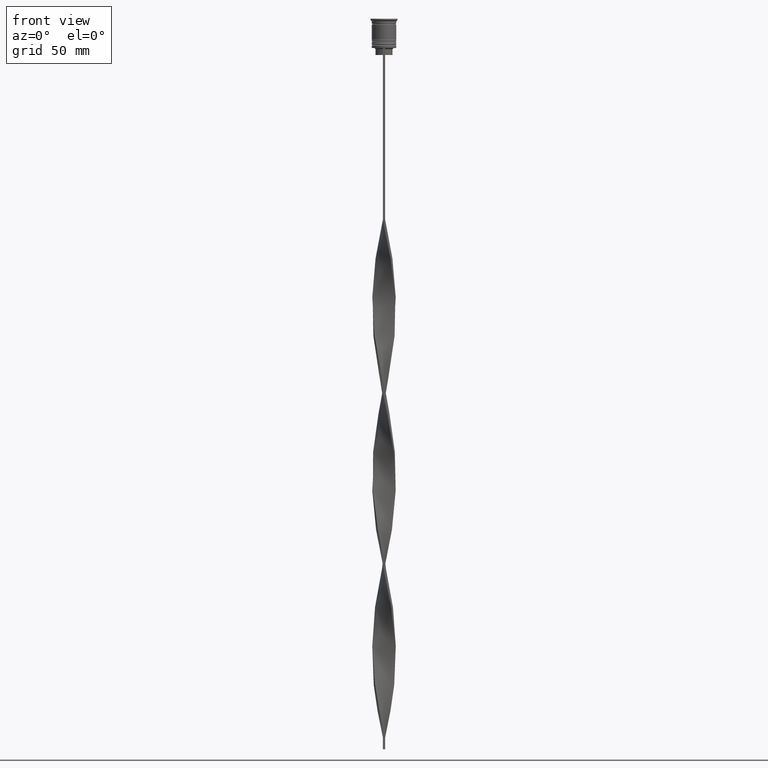
[diagram: clean part render]
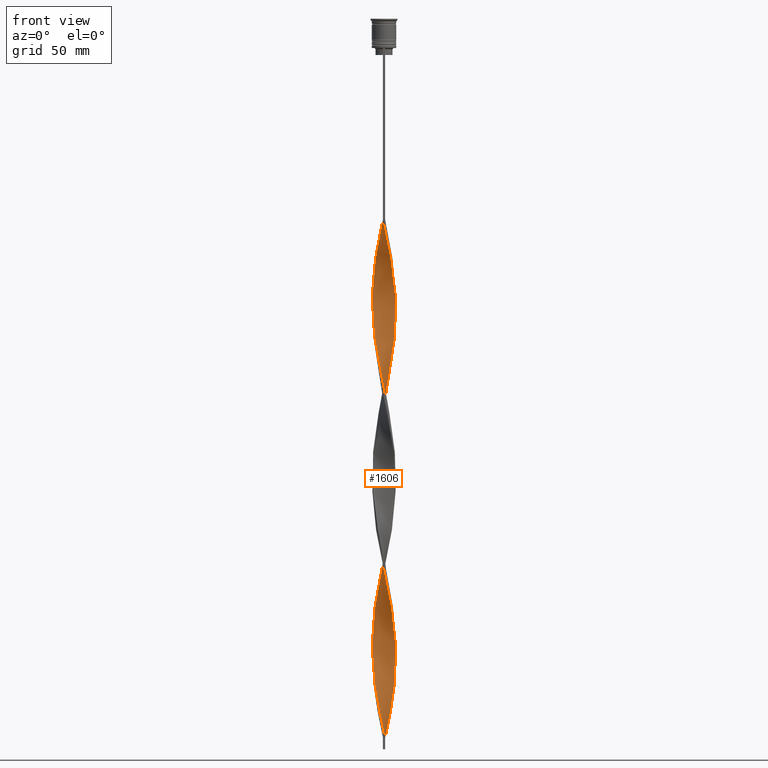
[diagram: same view with one face highlighted and labeled with its STEP entity id]
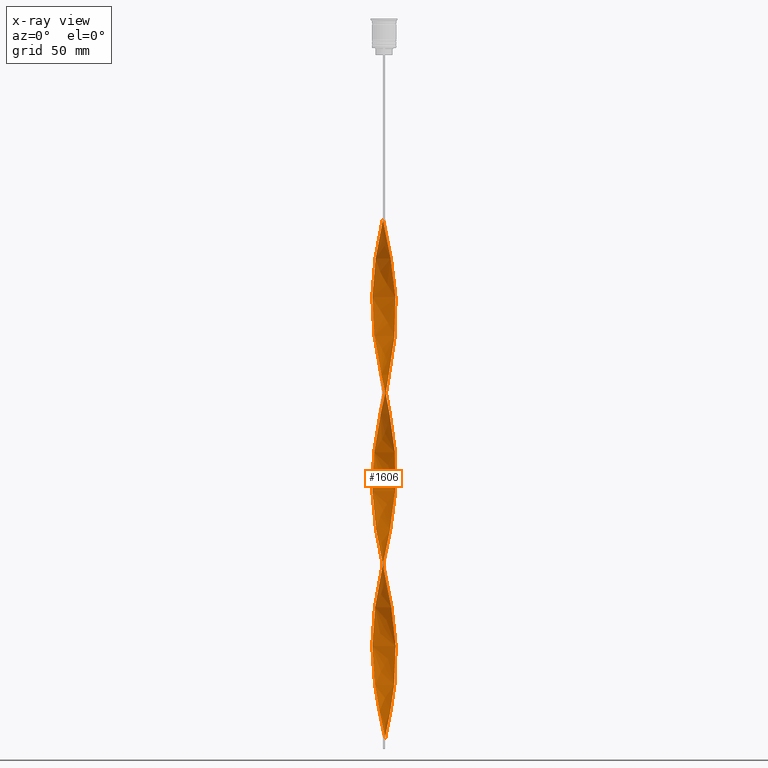
[diagram: x-ray of the same camera — body ghosted, the highlighted face saturated]
A machine part, front view. The second image highlights one B-rep face of the part: STEP entity #1606.
The next image is the same camera in x-ray: the body ghosted, the highlighted face saturated — about 0% of this face is hidden behind the body in this view.
In plain terms, the highlighted face is a freeform B-spline surface patch.
Its self-contained STEP definition (entity closure, byte-faithful):
#15 = CARTESIAN_POINT ( 'NONE',  ( 4.651228756897745065, 1.946648882453701823, -282.2412280701754526 ) ) ;
#22 = CARTESIAN_POINT ( 'NONE',  ( 0.5000000000000002220, 1.666666666666666075, -307.5000000000000000 ) ) ;
#38 = CARTESIAN_POINT ( 'NONE',  ( -2.474816539791244274, -4.393023322829788135, -223.9517543859649038 ) ) ;
#53 = CARTESIAN_POINT ( 'NONE',  ( -3.164131141785982759, 3.925766796198028263, -99.60087719298246611 ) ) ;
#54 = CARTESIAN_POINT ( 'NONE',  ( -5.017136063310726257, -0.5017136063310723149, -122.9166666666666572 ) ) ;
#60 = LINE ( 'NONE', #3391, #139 ) ;
#61 = CARTESIAN_POINT ( 'NONE',  ( -3.339978767552784777, 3.754269813465272332, -179.2631578947368496 ) ) ;
#70 = CARTESIAN_POINT ( 'NONE',  ( 2.819473840788612851, 4.159395059513907533, -295.8421052631579187 ) ) ;
#71 = CARTESIAN_POINT ( 'NONE',  ( 3.767136494507088873, -3.351425585076242886, -177.3201754385964932 ) ) ;
#82 = CARTESIAN_POINT ( 'NONE',  ( 4.378018920948801629, -2.466363786592375984, -113.2017543859649180 ) ) ;
#92 = CARTESIAN_POINT ( 'NONE',  ( -2.474816539791242054, 4.393023322829790800, -243.3815789473684390 ) ) ;
#93 = CARTESIAN_POINT ( 'NONE',  ( -4.378018920948803405, -2.466363786592375540, -132.6315789473684390 ) ) ;
#100 = CARTESIAN_POINT ( 'NONE',  ( -1.555904663195415871, 4.796095443128455038, -169.5482456140350962 ) ) ;
#111 = CARTESIAN_POINT ( 'NONE',  ( 3.767136494507088873, -3.351425585076243330, -177.3201754385964932 ) ) ;
#112 = CARTESIAN_POINT ( 'NONE',  ( 1.940000089582126774, 4.635342452550982095, -222.0087719298245759 ) ) ;
#116 = CARTESIAN_POINT ( 'NONE',  ( 1.555904663195416759, -4.796095443128455038, -95.71491228070175339 ) ) ;
#124 = CARTESIAN_POINT ( 'NONE',  ( 4.866129521283641068, 1.320664341398917641, -200.6359649122807127 ) ) ;
#125 = CARTESIAN_POINT ( 'NONE',  ( 0.08568818774616430989, -5.041431181225384250, -305.5570175438596721 ) ) ;
#139 = VECTOR ( 'NONE', #2780, 1000.000000000000000 ) ;
#148 = CARTESIAN_POINT ( 'NONE',  ( 0.9143118122538321790, -4.958568818774617526, -161.7763157894736992 ) ) ;
#150 = CARTESIAN_POINT ( 'NONE',  ( -4.582387650968867021, -2.103590795948401038, -278.3552631578947398 ) ) ;
#155 = CARTESIAN_POINT ( 'NONE',  ( -4.969744073267051476, -0.7427273027343286316, -202.5789473684210407 ) ) ;
#163 = CARTESIAN_POINT ( 'NONE',  ( 0.08568818774616432377, -5.041431181225384250, -157.8903508771930149 ) ) ;
#164 = CARTESIAN_POINT ( 'NONE',  ( 3.028891101531457686, 4.031028344680094300, -216.1798245614035068 ) ) ;
#172 = CARTESIAN_POINT ( 'NONE',  ( -0.5000000000000000000, -4.999999999999999112, -233.6666666666666572 ) ) ;
#181 = CARTESIAN_POINT ( 'NONE',  ( -2.676493308750143463, -4.252808903326802614, -291.9561403508772059 ) ) ;
#183 = CARTESIAN_POINT ( 'NONE',  ( -0.9143118122538339554, 4.958568818774617526, -235.6096491228070136 ) ) ;
#184 = ORIENTED_EDGE ( 'NONE', *, *, #1033, .F. ) ;
#187 = CARTESIAN_POINT ( 'NONE',  ( -4.779714345601771441, -1.550590459937318588, -206.4649122807017534 ) ) ;
#191 = CARTESIAN_POINT ( 'NONE',  ( 2.474816539791243830, 4.393023322829788135, -297.7850877192982466 ) ) ;
#210 = CARTESIAN_POINT ( 'NONE',  ( -5.024212137769514364, 0.08539551914167310687, -198.6929824561403564 ) ) ;
#212 = CARTESIAN_POINT ( 'NONE',  ( 4.378018920948801629, -2.466363786592375984, -260.8684210526315610 ) ) ;
#230 = CARTESIAN_POINT ( 'NONE',  ( -4.582387650968865245, 2.103590795948401482, -188.9780701754386314 ) ) ;
#232 = CARTESIAN_POINT ( 'NONE',  ( -1.717995393956227135, -4.740449624971872389, -227.8377192982456165 ) ) ;
#248 = CARTESIAN_POINT ( 'NONE',  ( 3.465633818146536260, 3.638596190637132466, -144.2894736842105203 ) ) ;
#250 = CARTESIAN_POINT ( 'NONE',  ( -0.9143118122538339554, 4.958568818774617526, -87.94298245614034215 ) ) ;
#269 = CARTESIAN_POINT ( 'NONE',  ( 2.676493308750141686, -4.252808903326800838, -101.5438596491227941 ) ) ;
#286 = CARTESIAN_POINT ( 'NONE',  ( 2.676493308750141686, -4.252808903326800838, -249.2105263157894797 ) ) ;
#298 = CARTESIAN_POINT ( 'NONE',  ( -0.5000000000000000000, 5.000000000000000888, -86.00000000000000000 ) ) ;
#305 = CARTESIAN_POINT ( 'NONE',  ( -0.08568818774616615563, -5.041431181225382474, -235.6096491228070136 ) ) ;
#333 = CARTESIAN_POINT ( 'NONE',  ( 1.316153603105031156, 4.849509221873243625, -303.6140350877193441 ) ) ;
#334 = CARTESIAN_POINT ( 'NONE',  ( -3.651066433574120751, -3.477511282250446811, -138.4605263157894512 ) ) ;
#338 = CARTESIAN_POINT ( 'NONE',  ( 0.5000000000000006661, 4.999999999999999112, -307.5000000000000000 ) ) ;
#339 = EDGE_LOOP ( 'NONE', ( #1089, #2848, #184, #2742 ) ) ;
#353 = CARTESIAN_POINT ( 'NONE',  ( 1.150588725173099736, -4.891435943105514106, -241.4385964912280542 ) ) ;
#354 = CARTESIAN_POINT ( 'NONE',  ( -4.459306470373856968, 2.316157551480870769, -109.3157894736842053 ) ) ;
#372 = CARTESIAN_POINT ( 'NONE',  ( -4.779714345601773218, 1.550590459937319476, -113.2017543859649180 ) ) ;
#374 = CARTESIAN_POINT ( 'NONE',  ( -5.024212137769516140, -0.08539551914167284319, -120.9736842105263150 ) ) ;
#381 = CARTESIAN_POINT ( 'NONE',  ( -0.5000000000000000000, -4.999999999999999112, -86.00000000000000000 ) ) ;
#396 = CARTESIAN_POINT ( 'NONE',  ( 4.378018920948803405, 2.466363786592376872, -206.4649122807017534 ) ) ;
#397 = CARTESIAN_POINT ( 'NONE',  ( 2.819473840788612407, -4.159395059513909310, -171.4912280701754241 ) ) ;
#407 = CARTESIAN_POINT ( 'NONE',  ( 0.5000000000000006661, 4.999999999999999112, -159.8333333333333144 ) ) ;
#416 = CARTESIAN_POINT ( 'NONE',  ( 4.173650190928741566, 2.829136777236347822, -208.4078947368421098 ) ) ;
#418 = CARTESIAN_POINT ( 'NONE',  ( 1.150588725173101512, 4.891435943105515882, -225.8947368421052602 ) ) ;
#423 = CARTESIAN_POINT ( 'NONE',  ( 4.941632792297182775, -0.9111889738649967541, -120.9736842105263150 ) ) ;
#434 = CARTESIAN_POINT ( 'NONE',  ( 3.912358312251431602, 3.153324029743397539, -210.3508771929824661 ) ) ;
#435 = CARTESIAN_POINT ( 'NONE',  ( -3.767136494507089317, 3.351425585076241553, -251.1535087719297792 ) ) ;
#444 = CARTESIAN_POINT ( 'NONE',  ( 2.819473840788612851, 4.159395059513907533, -148.1754385964912331 ) ) ;
#452 = CARTESIAN_POINT ( 'NONE',  ( -0.3297922997023091662, -5.014103812153980044, -155.9473684210526017 ) ) ;
#453 = CARTESIAN_POINT ( 'NONE',  ( 0.3297922997023119973, 5.014103812153979156, -229.7807017543859729 ) ) ;
#463 = CARTESIAN_POINT ( 'NONE',  ( 1.717995393956228911, 4.740449624971872389, -301.6710526315789593 ) ) ;
#475 = CARTESIAN_POINT ( 'NONE',  ( 3.651066433574120751, 3.477511282250446367, -212.2938596491228225 ) ) ;
#476 = CARTESIAN_POINT ( 'NONE',  ( -4.866129521283641068, -1.320664341398920527, -274.4692982456140840 ) ) ;
#482 = CARTESIAN_POINT ( 'NONE',  ( 3.767136494507087541, 3.351425585076240221, -290.0131578947368212 ) ) ;
#494 = CARTESIAN_POINT ( 'NONE',  ( -2.819473840788612851, 4.159395059513909310, -245.3245614035087669 ) ) ;
#501 = CARTESIAN_POINT ( 'NONE',  ( 3.164131141785981871, 3.925766796198026487, -293.8991228070175907 ) ) ;
#516 = CARTESIAN_POINT ( 'NONE',  ( -0.7452727871507810464, 4.986776443082573174, -165.6622807017543835 ) ) ;
#524 = CARTESIAN_POINT ( 'NONE',  ( 0.3297922997023081670, -5.014103812153978268, -237.5526315789473699 ) ) ;
#537 = CARTESIAN_POINT ( 'NONE',  ( -4.941632792297183663, -0.9111889738649963100, -272.5263157894737560 ) ) ;
#542 = CARTESIAN_POINT ( 'NONE',  ( -4.173650190928737125, 2.829136777236351818, -185.0921052631579187 ) ) ;
#545 = CARTESIAN_POINT ( 'NONE',  ( 4.969744073267050588, 0.7427273027343300749, -276.4122807017544119 ) ) ;
#556 = CARTESIAN_POINT ( 'NONE',  ( -3.339978767552788774, -3.754269813465271000, -288.0701754385964932 ) ) ;
#561 = CARTESIAN_POINT ( 'NONE',  ( -1.940000089582122333, 4.635342452550982095, -171.4912280701754241 ) ) ;
#565 = CARTESIAN_POINT ( 'NONE',  ( -1.555904663195419868, -4.796095443128455926, -150.1184210526315610 ) ) ;
#575 = CARTESIAN_POINT ( 'NONE',  ( 0.9143118122538355097, 4.958568818774616638, -157.8903508771930149 ) ) ;
#594 = VERTEX_POINT ( 'NONE', #3485 ) ;
#598 = CARTESIAN_POINT ( 'NONE',  ( -3.339978767552784777, 3.754269813465272332, -179.2631578947368496 ) ) ;
#617 = CARTESIAN_POINT ( 'NONE',  ( 5.024212137769514364, -0.08539551914167359259, -272.5263157894737560 ) ) ;
#631 = FACE_OUTER_BOUND ( 'NONE', #339, .T. ) ;
#636 = CARTESIAN_POINT ( 'NONE',  ( 5.017136063310725369, -0.5017136063310729810, -270.5833333333333712 ) ) ;
#637 = CARTESIAN_POINT ( 'NONE',  ( -4.866129521283641068, -1.320664341398920527, -126.8026315789473273 ) ) ;
#663 = CARTESIAN_POINT ( 'NONE',  ( 3.912358312251428938, -3.153324029743398427, -256.9824561403508483 ) ) ;
#664 = CARTESIAN_POINT ( 'NONE',  ( -2.096405966873734705, 4.566736473900832927, -93.77192982456139703 ) ) ;
#683 = CARTESIAN_POINT ( 'NONE',  ( -1.717995393956227135, 4.740449624971875053, -91.82894736842104066 ) ) ;
#684 = CARTESIAN_POINT ( 'NONE',  ( -0.3297922997023091662, -5.014103812153980044, -155.9473684210526017 ) ) ;
#691 = CARTESIAN_POINT ( 'NONE',  ( 1.150588725173099736, -4.891435943105514106, -93.77192982456139703 ) ) ;
#701 = CARTESIAN_POINT ( 'NONE',  ( 3.028891101531455021, -4.031028344680095188, -251.1535087719297508 ) ) ;
#708 = CARTESIAN_POINT ( 'NONE',  ( 2.474816539791243830, 4.393023322829788135, -150.1184210526315610 ) ) ;
#721 = CARTESIAN_POINT ( 'NONE',  ( -3.912358312251430714, -3.153324029743398427, -136.5175438596491233 ) ) ;
#734 = CARTESIAN_POINT ( 'NONE',  ( 3.767136494507087541, 3.351425585076240221, -142.3464912280701355 ) ) ;
#743 = CARTESIAN_POINT ( 'NONE',  ( -5.017136063310728034, -0.5017136063310723149, -122.9166666666666714 ) ) ;
#744 = CARTESIAN_POINT ( 'NONE',  ( -2.324095515968829240, -4.474589461973509152, -293.8991228070175907 ) ) ;
#752 = CARTESIAN_POINT ( 'NONE',  ( 4.969744073267050588, 0.7427273027343300749, -128.7456140350877263 ) ) ;
#760 = CARTESIAN_POINT ( 'NONE',  ( 2.676493308750143907, 4.252808903326801726, -218.1228070175438631 ) ) ;
#761 = CARTESIAN_POINT ( 'NONE',  ( 4.173650190928741566, 2.829136777236348266, -208.4078947368421098 ) ) ;
#769 = CARTESIAN_POINT ( 'NONE',  ( 4.724258586126251380, -1.712127568673661226, -117.0877192982456023 ) ) ;
#780 = CARTESIAN_POINT ( 'NONE',  ( 4.969744073267052364, -0.7427273027343305190, -190.9210526315789309 ) ) ;
#781 = CARTESIAN_POINT ( 'NONE',  ( -4.941632792297183663, -0.9111889738649963100, -272.5263157894737560 ) ) ;
#793 = CARTESIAN_POINT ( 'NONE',  ( -4.017260339178530870, -3.018545902792136193, -214.2368421052631788 ) ) ;
#806 = CARTESIAN_POINT ( 'NONE',  ( -1.555904663195420090, -4.796095443128456814, -297.7850877192982466 ) ) ;
#807 = CARTESIAN_POINT ( 'NONE',  ( 0.4999999999999993339, -5.000000000000000888, -307.5000000000000000 ) ) ;
#812 = CARTESIAN_POINT ( 'NONE',  ( 4.459306470373856079, 2.316157551480868548, -284.1842105263158373 ) ) ;
#827 = CARTESIAN_POINT ( 'NONE',  ( 3.651066433574118975, -3.477511282250445923, -107.3728070175438631 ) ) ;
#829 = CARTESIAN_POINT ( 'NONE',  ( -4.941632792297182775, 0.9111889738649984194, -194.8070175438596436 ) ) ;
#843 = CARTESIAN_POINT ( 'NONE',  ( 4.724258586126251380, -1.712127568673661226, -117.0877192982456023 ) ) ;
#850 = CARTESIAN_POINT ( 'NONE',  ( 1.150588725173099736, -4.891435943105514106, -241.4385964912280542 ) ) ;
#862 = CARTESIAN_POINT ( 'NONE',  ( -5.024212137769516140, -0.08539551914167284319, -268.6403508771929296 ) ) ;
#869 = CARTESIAN_POINT ( 'NONE',  ( 2.324095515968828796, -4.474589461973508264, -99.60087719298246611 ) ) ;
#871 = CARTESIAN_POINT ( 'NONE',  ( -2.676493308750143463, -4.252808903326802614, -144.2894736842105203 ) ) ;
#880 = CARTESIAN_POINT ( 'NONE',  ( -1.940000089582124554, -4.635342452550982983, -295.8421052631579187 ) ) ;
#884 = CARTESIAN_POINT ( 'NONE',  ( 5.017136063310725369, -0.5017136063310729810, -122.9166666666666714 ) ) ;
#889 = CARTESIAN_POINT ( 'NONE',  ( -4.779714345601773218, 1.550590459937319476, -113.2017543859649180 ) ) ;
#899 = CARTESIAN_POINT ( 'NONE',  ( 5.024212137769514364, -0.08539551914167359259, -124.8596491228069993 ) ) ;
#926 = CARTESIAN_POINT ( 'NONE',  ( -4.017260339178529094, 3.018545902792140634, -105.4298245614034926 ) ) ;
#944 = CARTESIAN_POINT ( 'NONE',  ( -0.5000000000000000000, -4.999999999999999112, -233.6666666666666572 ) ) ;
#965 = CARTESIAN_POINT ( 'NONE',  ( 0.5000000000000006661, 4.999999999999999112, -307.5000000000000000 ) ) ;
#966 = CARTESIAN_POINT ( 'NONE',  ( 0.9143118122538322901, -4.958568818774617526, -161.7763157894736707 ) ) ;
#967 = CARTESIAN_POINT ( 'NONE',  ( 1.150588725173099736, -4.891435943105514106, -93.77192982456139703 ) ) ;
#991 = CARTESIAN_POINT ( 'NONE',  ( 1.555904663195416537, -4.796095443128455926, -243.3815789473684390 ) ) ;
#992 = CARTESIAN_POINT ( 'NONE',  ( -4.267384183849968871, 2.685666220508038382, -107.3728070175438489 ) ) ;
#1003 = CARTESIAN_POINT ( 'NONE',  ( 4.459306470373856079, 2.316157551480868548, -136.5175438596491233 ) ) ;
#1010 = CARTESIAN_POINT ( 'NONE',  ( 4.017260339178529094, 3.018545902792137969, -288.0701754385964932 ) ) ;
#1011 = CARTESIAN_POINT ( 'NONE',  ( -4.941632792297183663, -0.9111889738649963100, -124.8596491228069993 ) ) ;
#1018 = CARTESIAN_POINT ( 'NONE',  ( 3.912358312251428938, -3.153324029743398427, -109.3157894736842053 ) ) ;
#1028 = CARTESIAN_POINT ( 'NONE',  ( -1.940000089582124554, -4.635342452550982983, -148.1754385964912331 ) ) ;
#1033 = EDGE_CURVE ( 'NONE', #1084, #2924, #1394, .T. ) ;
#1034 = CARTESIAN_POINT ( 'NONE',  ( 3.465633818146536260, 3.638596190637132466, -144.2894736842105203 ) ) ;
#1043 = CARTESIAN_POINT ( 'NONE',  ( -4.866129521283641068, -1.320664341398920527, -126.8026315789473273 ) ) ;
#1045 = CARTESIAN_POINT ( 'NONE',  ( -4.908199934305800483, 1.154532037420935797, -262.8114035087719458 ) ) ;
#1052 = CARTESIAN_POINT ( 'NONE',  ( 5.031288212228303358, 0.3309225680477255738, -126.8026315789473273 ) ) ;
#1059 = CARTESIAN_POINT ( 'NONE',  ( 0.3297922997023119973, 5.014103812153979156, -229.7807017543859729 ) ) ;
#1060 = CARTESIAN_POINT ( 'NONE',  ( -5.031288212228304246, 0.3309225680477266840, -266.6973684210526017 ) ) ;
#1072 = CARTESIAN_POINT ( 'NONE',  ( -2.676493308750143463, -4.252808903326802614, -144.2894736842105203 ) ) ;
#1074 = CARTESIAN_POINT ( 'NONE',  ( 4.724258586126254933, 1.712127568673659450, -202.5789473684210407 ) ) ;
#1083 = CARTESIAN_POINT ( 'NONE',  ( 4.173650190928738901, -2.829136777236350042, -258.9254385964911762 ) ) ;
#1084 = VERTEX_POINT ( 'NONE', #3705 ) ;
#1089 = ORIENTED_EDGE ( 'NONE', *, *, #3286, .T. ) ;
#1093 = CARTESIAN_POINT ( 'NONE',  ( 4.779714345601772330, -1.550590459937321031, -187.0350877192982466 ) ) ;
#1095 = CARTESIAN_POINT ( 'NONE',  ( 4.941632792297183663, 0.9111889738649967541, -198.6929824561403564 ) ) ;
#1106 = CARTESIAN_POINT ( 'NONE',  ( 4.779714345601772330, 1.550590459937317256, -280.2982456140351246 ) ) ;
#1117 = CARTESIAN_POINT ( 'NONE',  ( -2.819473840788612851, 4.159395059513909310, -245.3245614035087669 ) ) ;
#1122 = CARTESIAN_POINT ( 'NONE',  ( -4.459306470373856968, -2.316157551480868104, -210.3508771929824661 ) ) ;
#1125 = CARTESIAN_POINT ( 'NONE',  ( -0.08568818774616615563, -5.041431181225382474, -235.6096491228070136 ) ) ;
#1132 = CARTESIAN_POINT ( 'NONE',  ( -0.7452727871507848212, -4.986776443082574062, -301.6710526315789593 ) ) ;
#1138 = CARTESIAN_POINT ( 'NONE',  ( 1.555904663195416537, -4.796095443128455926, -95.71491228070176760 ) ) ;
#1140 = CARTESIAN_POINT ( 'NONE',  ( -5.031288212228303358, -0.3309225680477228537, -200.6359649122806843 ) ) ;
#1157 = CARTESIAN_POINT ( 'NONE',  ( 4.651228756897745065, 1.946648882453701823, -134.5745614035087385 ) ) ;
#1161 = CARTESIAN_POINT ( 'NONE',  ( 0.4999999999999993339, -5.000000000000000888, -307.5000000000000000 ) ) ;
#1162 = CARTESIAN_POINT ( 'NONE',  ( 3.465633818146536260, 3.638596190637132466, -291.9561403508772059 ) ) ;
#1175 = CARTESIAN_POINT ( 'NONE',  ( -4.969744073267053253, 0.7427273027343311851, -264.7543859649122737 ) ) ;
#1182 = CARTESIAN_POINT ( 'NONE',  ( 2.096405966873735149, 4.566736473900831150, -152.0614035087719174 ) ) ;
#1186 = CARTESIAN_POINT ( 'NONE',  ( -1.316153603105030712, 4.849509221873245401, -89.88596491228069851 ) ) ;
#1194 = CARTESIAN_POINT ( 'NONE',  ( -4.779714345601773218, 1.550590459937319476, -260.8684210526315610 ) ) ;
#1201 = CARTESIAN_POINT ( 'NONE',  ( 2.819473840788612851, 4.159395059513907533, -148.1754385964912331 ) ) ;
#1216 = CARTESIAN_POINT ( 'NONE',  ( 1.940000089582122778, -4.635342452550982095, -245.3245614035087669 ) ) ;
#1242 = CARTESIAN_POINT ( 'NONE',  ( 3.767136494507087541, 3.351425585076240665, -290.0131578947368212 ) ) ;
#1247 = CARTESIAN_POINT ( 'NONE',  ( 0.4999999999999997780, -1.666666666666667851, -307.5000000000000000 ) ) ;
#1258 = CARTESIAN_POINT ( 'NONE',  ( 4.378018920948801629, -2.466363786592375984, -260.8684210526315610 ) ) ;
#1260 = CARTESIAN_POINT ( 'NONE',  ( -3.028891101531455909, -4.031028344680096076, -142.3464912280701355 ) ) ;
#1275 = CARTESIAN_POINT ( 'NONE',  ( -1.316153603105033820, -4.849509221873242737, -229.7807017543859729 ) ) ;
#1276 = CARTESIAN_POINT ( 'NONE',  ( -3.465633818146536704, 3.638596190637135130, -101.5438596491227941 ) ) ;
#1283 = CARTESIAN_POINT ( 'NONE',  ( -3.651066433574118086, 3.477511282250446367, -181.2061403508771775 ) ) ;
#1296 = CARTESIAN_POINT ( 'NONE',  ( -2.474816539791242054, 4.393023322829790800, -95.71491228070176760 ) ) ;
#1298 = CARTESIAN_POINT ( 'NONE',  ( -4.017260339178529094, 3.018545902792140634, -105.4298245614034926 ) ) ;
#1306 = CARTESIAN_POINT ( 'NONE',  ( 4.651228756897744177, 1.946648882453701823, -134.5745614035087385 ) ) ;
#1317 = CARTESIAN_POINT ( 'NONE',  ( -4.724258586126254045, -1.712127568673661004, -128.7456140350877263 ) ) ;
#1323 = CARTESIAN_POINT ( 'NONE',  ( -2.676493308750141686, 4.252808903326801726, -175.3771929824561369 ) ) ;
#1332 = CARTESIAN_POINT ( 'NONE',  ( 4.267384183849968871, -2.685666220508039714, -181.2061403508771775 ) ) ;
#1333 = CARTESIAN_POINT ( 'NONE',  ( 5.017136063310726257, 0.5017136063310717597, -196.7499999999999716 ) ) ;
#1339 = CARTESIAN_POINT ( 'NONE',  ( 1.940000089582122778, -4.635342452550982095, -97.65789473684209554 ) ) ;
#1352 = CARTESIAN_POINT ( 'NONE',  ( 3.465633818146536704, -3.638596190637135130, -175.3771929824561369 ) ) ;
#1353 = CARTESIAN_POINT ( 'NONE',  ( -1.940000089582124554, -4.635342452550982983, -295.8421052631579187 ) ) ;
#1364 = CARTESIAN_POINT ( 'NONE',  ( -3.028891101531454133, 4.031028344680096076, -177.3201754385964932 ) ) ;
#1371 = CARTESIAN_POINT ( 'NONE',  ( 3.028891101531458130, 4.031028344680094300, -216.1798245614035068 ) ) ;
#1372 = CARTESIAN_POINT ( 'NONE',  ( -3.028891101531455909, -4.031028344680096076, -290.0131578947368212 ) ) ;
#1378 = CARTESIAN_POINT ( 'NONE',  ( -4.779714345601771441, -1.550590459937318588, -206.4649122807017534 ) ) ;
#1387 = CARTESIAN_POINT ( 'NONE',  ( -3.028891101531455909, -4.031028344680096076, -142.3464912280701355 ) ) ;
#1388 = CARTESIAN_POINT ( 'NONE',  ( 0.7452727871507831559, 4.986776443082574062, -227.8377192982456165 ) ) ;
#1394 = B_SPLINE_CURVE_WITH_KNOTS ( 'NONE', 3,
 ( #338, #22, #1247, #1161 ),
 .UNSPECIFIED., .F., .F.,
 ( 4, 4 ),
 ( 0.000000000000000000, 1.000000000000000000 ),
 .UNSPECIFIED. ) ;
#1395 = CARTESIAN_POINT ( 'NONE',  ( 1.555904663195416759, -4.796095443128455038, -243.3815789473684106 ) ) ;
#1404 = CARTESIAN_POINT ( 'NONE',  ( 0.08568818774616432377, -5.041431181225384250, -305.5570175438596721 ) ) ;
#1406 = CARTESIAN_POINT ( 'NONE',  ( -3.339978767552788774, -3.754269813465271000, -288.0701754385964932 ) ) ;
#1415 = CARTESIAN_POINT ( 'NONE',  ( 4.582387650968865245, -2.103590795948401038, -115.1447368421052602 ) ) ;
#1420 = CARTESIAN_POINT ( 'NONE',  ( 3.339978767552786554, -3.754269813465270555, -253.0964912280702208 ) ) ;
#1439 = CARTESIAN_POINT ( 'NONE',  ( -3.767136494507089761, -3.351425585076238445, -216.1798245614035068 ) ) ;
#1443 = CARTESIAN_POINT ( 'NONE',  ( 4.724258586126251380, -1.712127568673661226, -264.7543859649122737 ) ) ;
#1458 = CARTESIAN_POINT ( 'NONE',  ( -4.941632792297182775, 0.9111889738649984194, -194.8070175438596436 ) ) ;
#1460 = CARTESIAN_POINT ( 'NONE',  ( 4.651228756897744177, 1.946648882453701823, -282.2412280701754526 ) ) ;
#1468 = CARTESIAN_POINT ( 'NONE',  ( -4.866129521283641068, -1.320664341398920527, -274.4692982456140840 ) ) ;
#1474 = CARTESIAN_POINT ( 'NONE',  ( 4.908199934305798706, 1.154532037420934687, -130.6885964912280258 ) ) ;
#1481 = CARTESIAN_POINT ( 'NONE',  ( -4.651228756897745953, 1.946648882453702933, -111.2587719298245617 ) ) ;
#1491 = CARTESIAN_POINT ( 'NONE',  ( -3.767136494507089317, 3.351425585076241997, -251.1535087719297508 ) ) ;
#1497 = CARTESIAN_POINT ( 'NONE',  ( 3.164131141785981871, 3.925766796198026487, -146.2324561403508483 ) ) ;
#1515 = CARTESIAN_POINT ( 'NONE',  ( 2.096405966873735149, 4.566736473900831150, -299.7280701754385746 ) ) ;
#1535 = CARTESIAN_POINT ( 'NONE',  ( 4.582387650968865245, -2.103590795948401038, -262.8114035087720026 ) ) ;
#1563 = CARTESIAN_POINT ( 'NONE',  ( 5.031288212228303358, 0.3309225680477256293, -274.4692982456140840 ) ) ;
#1564 = CARTESIAN_POINT ( 'NONE',  ( -2.324095515968829240, -4.474589461973509152, -146.2324561403508483 ) ) ;
#1581 = CARTESIAN_POINT ( 'NONE',  ( -0.5000000000000000000, -4.999999999999999112, -86.00000000000000000 ) ) ;
#1584 = CARTESIAN_POINT ( 'NONE',  ( -0.9143118122538339554, 4.958568818774617526, -87.94298245614032794 ) ) ;
#1592 = CARTESIAN_POINT ( 'NONE',  ( -0.08568818774616615563, -5.041431181225382474, -87.94298245614034215 ) ) ;
#1594 =( BOUNDED_CURVE ( )  B_SPLINE_CURVE ( 2, ( #381, #1592, #2247, #2538, #691, #116, #1339, #3786, #2517, #1919, #3121, #2864, #1018, #2287, #82, #3451, #769, #3470, #423, #3749, #3717, #1052, #752, #1649, #2842, #1306, #1003, #2597, #2234, #734, #1034, #3177, #444, #708, #1956, #1935, #3429, #3142, #407, #3105, #1633, #3769, #1974, #100, #1667, #2898, #1323, #1364, #61, #1283, #1766, #2655, #2973, #1723, #2674, #3546, #829, #2361, #2387, #1140, #155, #3247, #1378, #2933, #3566, #3883, #793, #2327, #2950, #2614, #3229, #3530, #3846, #232, #3508, #1991, #172, #1125, #524, #1747, #850, #1395, #2341, #3588, #2065, #2042, #1420, #3800, #2302, #1083, #212, #2632, #1443, #3866, #3271, #3819, #2009, #3216, #545, #2989, #1106, #1460, #812, #1707, #2025, #482, #1162, #501, #2691, #191, #3195, #463, #1695, #2916, #1893 ),
 .UNSPECIFIED., .F., .T. ) 
 B_SPLINE_CURVE_WITH_KNOTS ( ( 3, 2, 2, 2, 2, 2, 2, 2, 2, 2, 2, 2, 2, 2, 2, 2, 2, 2, 2, 2, 2, 2, 2, 2, 2, 2, 2, 2, 2, 2, 2, 2, 2, 2, 2, 2, 2, 2, 2, 2, 2, 2, 2, 2, 2, 2, 2, 2, 2, 2, 2, 2, 2, 2, 2, 2, 2, 3 ),
 ( 0.000000000000000000, 0.01315789473684210453, 0.02631578947368420907, 0.03947368421052631360, 0.05263157894736841813, 0.06578947368421052266, 0.07894736842105262720, 0.09210526315789473173, 0.1052631578947368363, 0.1184210526315789408, 0.1315789473684210453, 0.1447368421052631637, 0.1578947368421052544, 0.1710526315789473728, 0.1842105263157894635, 0.1973684210526315541, 0.2105263157894736725, 0.2236842105263157909, 0.2368421052631578816, 0.2500000000000000000, 0.2631578947368420907, 0.2763157894736842368, 0.2894736842105263275, 0.3026315789473684181, 0.3157894736842105088, 0.3289473684210526550, 0.3421052631578947456, 0.3552631578947368918, 0.3684210526315789269, 0.3815789473684210731, 0.3947368421052631082, 0.4078947368421052544, 0.4210526315789473450, 0.4342105263157895467, 0.4473684210526315819, 0.4605263157894736725, 0.4736842105263157632, 0.4868421052631579093, 0.5000000000000000000, 0.5131578947368421462, 0.5263157894736841813, 0.5394736842105263275, 0.5526315789473684736, 0.5657894736842105088, 0.5789473684210526550, 0.5921052631578946901, 0.6052631578947368363, 0.6184210526315789824, 0.6315789473684210176, 0.6447368421052631637, 0.6578947368421053099, 0.6710526315789473450, 0.6842105263157894912, 0.6973684210526315264, 0.7105263157894737835, 0.7236842105263158187, 0.7368421052631578538, 0.7500000000000000000 ),
 .UNSPECIFIED. ) 
 CURVE ( )  GEOMETRIC_REPRESENTATION_ITEM ( )  RATIONAL_B_SPLINE_CURVE ( ( 1.000000000000000000, 0.9965844930066698470, 1.000000000000000000, 0.9965844930066698470, 1.000000000000000000, 0.9965844930066698470, 1.000000000000000000, 0.9965844930066698470, 1.000000000000000000, 0.9965844930066698470, 1.000000000000000000, 0.9965844930066698470, 1.000000000000000000, 0.9965844930066698470, 1.000000000000000000, 0.9965844930066698470, 1.000000000000000000, 0.9965844930066698470, 1.000000000000000000, 0.9965844930066698470, 1.000000000000000000, 0.9965844930066698470, 1.000000000000000000, 0.9965844930066698470, 1.000000000000000000, 0.9965844930066698470, 1.000000000000000000, 0.9965844930066698470, 1.000000000000000000, 0.9965844930066698470, 1.000000000000000000, 0.9965844930066698470, 1.000000000000000000, 0.9965844930066698470, 1.000000000000000000, 0.9965844930066698470, 1.000000000000000000, 0.9965844930066698470, 1.000000000000000000, 0.9965844930066698470, 1.000000000000000000, 0.9965844930066698470, 1.000000000000000000, 0.9965844930066698470, 1.000000000000000000, 0.9965844930066698470, 1.000000000000000000, 0.9965844930066698470, 1.000000000000000000, 0.9965844930066698470, 1.000000000000000000, 0.9965844930066698470, 1.000000000000000000, 0.9965844930066698470, 1.000000000000000000, 0.9965844930066698470, 1.000000000000000000, 0.9965844930066698470, 1.000000000000000000, 0.9965844930066698470, 1.000000000000000000, 0.9965844930066698470, 1.000000000000000000, 0.9965844930066698470, 1.000000000000000000, 0.9965844930066698470, 1.000000000000000000, 0.9965844930066698470, 1.000000000000000000, 0.9965844930066698470, 1.000000000000000000, 0.9965844930066698470, 1.000000000000000000, 0.9965844930066698470, 1.000000000000000000, 0.9965844930066698470, 1.000000000000000000, 0.9965844930066698470, 1.000000000000000000, 0.9965844930066698470, 1.000000000000000000, 0.9965844930066698470, 1.000000000000000000, 0.9965844930066698470, 1.000000000000000000, 0.9965844930066698470, 1.000000000000000000, 0.9965844930066698470, 1.000000000000000000, 0.9965844930066698470, 1.000000000000000000, 0.9965844930066698470, 1.000000000000000000, 0.9965844930066698470, 1.000000000000000000, 0.9965844930066698470, 1.000000000000000000, 0.9965844930066698470, 1.000000000000000000, 0.9965844930066698470, 1.000000000000000000, 0.9965844930066698470, 1.000000000000000000, 0.9965844930066698470, 1.000000000000000000, 0.9965844930066698470, 1.000000000000000000, 0.9965844930066698470, 1.000000000000000000, 0.9965844930066698470, 1.000000000000000000, 0.9965844930066698470, 1.000000000000000000, 0.9965844930066698470, 1.000000000000000000 ) ) 
 REPRESENTATION_ITEM ( '' )  );
#1603 = CARTESIAN_POINT ( 'NONE',  ( 4.969744073267050588, 0.7427273027343300749, -276.4122807017544119 ) ) ;
#1604 = CARTESIAN_POINT ( 'NONE',  ( 3.164131141785981871, -3.925766796198029152, -173.4342105263158089 ) ) ;
#1606 = ADVANCED_FACE ( 'NONE', ( #631 ), #3215, .T. ) ;
#1625 = CARTESIAN_POINT ( 'NONE',  ( 4.651228756897745065, -1.946648882453705598, -185.0921052631579187 ) ) ;
#1626 = CARTESIAN_POINT ( 'NONE',  ( -0.5000000000000000000, 5.000000000000000888, -86.00000000000000000 ) ) ;
#1633 = CARTESIAN_POINT ( 'NONE',  ( -0.3297922997023075564, 5.014103812153978268, -163.7192982456140555 ) ) ;
#1643 = CARTESIAN_POINT ( 'NONE',  ( -4.941632792297183663, -0.9111889738649963100, -124.8596491228069993 ) ) ;
#1644 = CARTESIAN_POINT ( 'NONE',  ( -3.465633818146536704, 3.638596190637135130, -249.2105263157894797 ) ) ;
#1649 = CARTESIAN_POINT ( 'NONE',  ( 4.908199934305798706, 1.154532037420934687, -130.6885964912280258 ) ) ;
#1659 = CARTESIAN_POINT ( 'NONE',  ( -1.555904663195420090, -4.796095443128456814, -150.1184210526315894 ) ) ;
#1660 = CARTESIAN_POINT ( 'NONE',  ( -1.150588725173101068, -4.891435943105515882, -299.7280701754385746 ) ) ;
#1667 = CARTESIAN_POINT ( 'NONE',  ( -1.940000089582122333, 4.635342452550982095, -171.4912280701754241 ) ) ;
#1681 = CARTESIAN_POINT ( 'NONE',  ( 2.819473840788612407, -4.159395059513909310, -171.4912280701754241 ) ) ;
#1682 = CARTESIAN_POINT ( 'NONE',  ( -4.459306470373856968, 2.316157551480870769, -256.9824561403508483 ) ) ;
#1695 = CARTESIAN_POINT ( 'NONE',  ( 1.316153603105031156, 4.849509221873243625, -303.6140350877193441 ) ) ;
#1701 = CARTESIAN_POINT ( 'NONE',  ( -0.9143118122538339554, 4.958568818774617526, -235.6096491228070136 ) ) ;
#1702 = CARTESIAN_POINT ( 'NONE',  ( -0.08568818774616365763, 5.041431181225384250, -231.7236842105263008 ) ) ;
#1707 = CARTESIAN_POINT ( 'NONE',  ( 4.267384183849967094, 2.685666220508037494, -286.1271929824561653 ) ) ;
#1716 = CARTESIAN_POINT ( 'NONE',  ( 5.024212137769516140, 0.08539551914167110847, -194.8070175438596436 ) ) ;
#1723 = CARTESIAN_POINT ( 'NONE',  ( -4.582387650968865245, 2.103590795948401482, -188.9780701754386030 ) ) ;
#1732 = CARTESIAN_POINT ( 'NONE',  ( -2.324095515968829684, -4.474589461973509152, -293.8991228070175907 ) ) ;
#1742 = CARTESIAN_POINT ( 'NONE',  ( -3.912358312251428938, 3.153324029743398427, -183.1491228070175623 ) ) ;
#1747 = CARTESIAN_POINT ( 'NONE',  ( 0.7452727871507823787, -4.986776443082572285, -239.4956140350876979 ) ) ;
#1756 = CARTESIAN_POINT ( 'NONE',  ( -0.3297922997023091662, -5.014103812153980044, -303.6140350877193441 ) ) ;
#1762 = CARTESIAN_POINT ( 'NONE',  ( 4.017260339178529094, 3.018545902792137969, -140.4035087719298076 ) ) ;
#1766 = CARTESIAN_POINT ( 'NONE',  ( -3.912358312251428938, 3.153324029743398427, -183.1491228070175623 ) ) ;
#1779 = CARTESIAN_POINT ( 'NONE',  ( -5.017136063310728034, -0.5017136063310723149, -270.5833333333333712 ) ) ;
#1783 = CARTESIAN_POINT ( 'NONE',  ( -3.651066433574118086, 3.477511282250446367, -181.2061403508771775 ) ) ;
#1786 = CARTESIAN_POINT ( 'NONE',  ( 4.908199934305800483, -1.154532037420936463, -188.9780701754386030 ) ) ;
#1802 = CARTESIAN_POINT ( 'NONE',  ( 4.267384183849967982, 2.685666220508037494, -138.4605263157894512 ) ) ;
#1827 = CARTESIAN_POINT ( 'NONE',  ( -4.866129521283638404, 1.320664341398923192, -192.8640350877193157 ) ) ;
#1846 = CARTESIAN_POINT ( 'NONE',  ( 4.908199934305798706, 1.154532037420934687, -278.3552631578947398 ) ) ;
#1865 = CARTESIAN_POINT ( 'NONE',  ( 4.941632792297182775, -0.9111889738649967541, -268.6403508771929296 ) ) ;
#1866 = CARTESIAN_POINT ( 'NONE',  ( -3.164131141785982759, 3.925766796198028263, -99.60087719298245190 ) ) ;
#1892 = CARTESIAN_POINT ( 'NONE',  ( -3.465633818146536704, 3.638596190637135130, -101.5438596491227941 ) ) ;
#1893 = CARTESIAN_POINT ( 'NONE',  ( 0.5000000000000006661, 4.999999999999999112, -307.5000000000000000 ) ) ;
#1911 = CARTESIAN_POINT ( 'NONE',  ( 4.173650190928738901, -2.829136777236350042, -258.9254385964912331 ) ) ;
#1912 = CARTESIAN_POINT ( 'NONE',  ( 1.316153603105030268, -4.849509221873245401, -163.7192982456140555 ) ) ;
#1919 = CARTESIAN_POINT ( 'NONE',  ( 3.028891101531455021, -4.031028344680095188, -103.4868421052631504 ) ) ;
#1928 = CARTESIAN_POINT ( 'NONE',  ( 0.7452727871507832669, 4.986776443082574062, -227.8377192982456165 ) ) ;
#1930 = CARTESIAN_POINT ( 'NONE',  ( 4.651228756897744177, -1.946648882453705376, -185.0921052631578902 ) ) ;
#1935 = CARTESIAN_POINT ( 'NONE',  ( 1.717995393956228911, 4.740449624971872389, -154.0043859649122737 ) ) ;
#1950 = CARTESIAN_POINT ( 'NONE',  ( -1.150588725173101068, -4.891435943105515882, -152.0614035087719174 ) ) ;
#1956 = CARTESIAN_POINT ( 'NONE',  ( 2.096405966873735149, 4.566736473900831150, -152.0614035087719174 ) ) ;
#1965 = CARTESIAN_POINT ( 'NONE',  ( 4.017260339178527317, -3.018545902792142410, -179.2631578947368496 ) ) ;
#1967 = CARTESIAN_POINT ( 'NONE',  ( -1.717995393956227135, 4.740449624971874165, -239.4956140350876979 ) ) ;
#1974 = CARTESIAN_POINT ( 'NONE',  ( -1.150588725173099514, 4.891435943105514106, -167.6052631578947398 ) ) ;
#1982 = CARTESIAN_POINT ( 'NONE',  ( 1.150588725173101512, 4.891435943105515882, -225.8947368421052602 ) ) ;
#1983 = CARTESIAN_POINT ( 'NONE',  ( -5.024212137769516140, -0.08539551914167284319, -268.6403508771929296 ) ) ;
#1991 = CARTESIAN_POINT ( 'NONE',  ( -0.9143118122538361758, -4.958568818774615750, -231.7236842105263008 ) ) ;
#2001 = CARTESIAN_POINT ( 'NONE',  ( 2.324095515968830128, 4.474589461973509152, -220.0657894736842195 ) ) ;
#2002 = CARTESIAN_POINT ( 'NONE',  ( 1.555904663195420756, 4.796095443128455926, -223.9517543859649038 ) ) ;
#2004 =( BOUNDED_CURVE ( )  B_SPLINE_CURVE ( 2, ( #1626, #250, #1186, #3607, #664, #2795, #2857, #1866, #1276, #2549, #1298, #992, #354, #1481, #889, #2714, #2811, #3076, #374, #54, #1011, #637, #2505, #3704, #93, #2103, #3305, #334, #3100, #1260, #871, #1564, #2205, #565, #2529, #3404, #684, #2484, #3683, #966, #1912, #2180, #3382, #3113, #397, #1604, #2832, #71, #2226, #3420, #3728, #1930, #3131, #1786, #3007, #3156, #1716, #1333, #1095, #2568, #1074, #3224, #2926, #761, #2873, #3482, #3761, #164, #2296, #2018, #112, #2002, #418, #1388, #453, #1702, #3499, #183, #3187, #1967, #2591, #2608, #494, #2910, #1644, #435, #3209, #3170, #1682, #2944, #3780, #1045, #2263, #1060, #1983, #2890, #781, #476, #2626, #150, #3441, #3464, #3810, #3796, #1406, #1372, #2278, #744, #1353, #2243, #1660, #2317, #3522, #125, #807 ),
 .UNSPECIFIED., .F., .T. ) 
 B_SPLINE_CURVE_WITH_KNOTS ( ( 3, 2, 2, 2, 2, 2, 2, 2, 2, 2, 2, 2, 2, 2, 2, 2, 2, 2, 2, 2, 2, 2, 2, 2, 2, 2, 2, 2, 2, 2, 2, 2, 2, 2, 2, 2, 2, 2, 2, 2, 2, 2, 2, 2, 2, 2, 2, 2, 2, 2, 2, 2, 2, 2, 2, 2, 2, 3 ),
 ( 0.000000000000000000, 0.01315789473684210453, 0.02631578947368420907, 0.03947368421052631360, 0.05263157894736841813, 0.06578947368421052266, 0.07894736842105262720, 0.09210526315789473173, 0.1052631578947368363, 0.1184210526315789408, 0.1315789473684210453, 0.1447368421052631637, 0.1578947368421052544, 0.1710526315789473728, 0.1842105263157894635, 0.1973684210526315541, 0.2105263157894736725, 0.2236842105263157909, 0.2368421052631578816, 0.2500000000000000000, 0.2631578947368420907, 0.2763157894736842368, 0.2894736842105263275, 0.3026315789473684181, 0.3157894736842105088, 0.3289473684210526550, 0.3421052631578947456, 0.3552631578947368918, 0.3684210526315789269, 0.3815789473684210731, 0.3947368421052631082, 0.4078947368421052544, 0.4210526315789473450, 0.4342105263157895467, 0.4473684210526315819, 0.4605263157894736725, 0.4736842105263157632, 0.4868421052631579093, 0.5000000000000000000, 0.5131578947368421462, 0.5263157894736841813, 0.5394736842105263275, 0.5526315789473684736, 0.5657894736842105088, 0.5789473684210526550, 0.5921052631578946901, 0.6052631578947368363, 0.6184210526315789824, 0.6315789473684210176, 0.6447368421052631637, 0.6578947368421053099, 0.6710526315789473450, 0.6842105263157894912, 0.6973684210526315264, 0.7105263157894737835, 0.7236842105263158187, 0.7368421052631578538, 0.7500000000000000000 ),
 .UNSPECIFIED. ) 
 CURVE ( )  GEOMETRIC_REPRESENTATION_ITEM ( )  RATIONAL_B_SPLINE_CURVE ( ( 1.000000000000000000, 0.9965844930066698470, 1.000000000000000000, 0.9965844930066698470, 1.000000000000000000, 0.9965844930066698470, 1.000000000000000000, 0.9965844930066698470, 1.000000000000000000, 0.9965844930066698470, 1.000000000000000000, 0.9965844930066698470, 1.000000000000000000, 0.9965844930066698470, 1.000000000000000000, 0.9965844930066698470, 1.000000000000000000, 0.9965844930066698470, 1.000000000000000000, 0.9965844930066698470, 1.000000000000000000, 0.9965844930066698470, 1.000000000000000000, 0.9965844930066698470, 1.000000000000000000, 0.9965844930066698470, 1.000000000000000000, 0.9965844930066698470, 1.000000000000000000, 0.9965844930066698470, 1.000000000000000000, 0.9965844930066698470, 1.000000000000000000, 0.9965844930066698470, 1.000000000000000000, 0.9965844930066698470, 1.000000000000000000, 0.9965844930066698470, 1.000000000000000000, 0.9965844930066698470, 1.000000000000000000, 0.9965844930066698470, 1.000000000000000000, 0.9965844930066698470, 1.000000000000000000, 0.9965844930066698470, 1.000000000000000000, 0.9965844930066698470, 1.000000000000000000, 0.9965844930066698470, 1.000000000000000000, 0.9965844930066698470, 1.000000000000000000, 0.9965844930066698470, 1.000000000000000000, 0.9965844930066698470, 1.000000000000000000, 0.9965844930066698470, 1.000000000000000000, 0.9965844930066698470, 1.000000000000000000, 0.9965844930066698470, 1.000000000000000000, 0.9965844930066698470, 1.000000000000000000, 0.9965844930066698470, 1.000000000000000000, 0.9965844930066698470, 1.000000000000000000, 0.9965844930066698470, 1.000000000000000000, 0.9965844930066698470, 1.000000000000000000, 0.9965844930066698470, 1.000000000000000000, 0.9965844930066698470, 1.000000000000000000, 0.9965844930066698470, 1.000000000000000000, 0.9965844930066698470, 1.000000000000000000, 0.9965844930066698470, 1.000000000000000000, 0.9965844930066698470, 1.000000000000000000, 0.9965844930066698470, 1.000000000000000000, 0.9965844930066698470, 1.000000000000000000, 0.9965844930066698470, 1.000000000000000000, 0.9965844930066698470, 1.000000000000000000, 0.9965844930066698470, 1.000000000000000000, 0.9965844930066698470, 1.000000000000000000, 0.9965844930066698470, 1.000000000000000000, 0.9965844930066698470, 1.000000000000000000, 0.9965844930066698470, 1.000000000000000000, 0.9965844930066698470, 1.000000000000000000, 0.9965844930066698470, 1.000000000000000000, 0.9965844930066698470, 1.000000000000000000, 0.9965844930066698470, 1.000000000000000000, 0.9965844930066698470, 1.000000000000000000, 0.9965844930066698470, 1.000000000000000000 ) ) 
 REPRESENTATION_ITEM ( '' )  );
#2009 = CARTESIAN_POINT ( 'NONE',  ( 5.024212137769514364, -0.08539551914167359259, -272.5263157894737560 ) ) ;
#2018 = CARTESIAN_POINT ( 'NONE',  ( 2.324095515968829684, 4.474589461973509152, -220.0657894736842195 ) ) ;
#2025 = CARTESIAN_POINT ( 'NONE',  ( 4.017260339178529094, 3.018545902792137969, -288.0701754385964932 ) ) ;
#2030 = CARTESIAN_POINT ( 'NONE',  ( 0.4999999999999993339, -5.000000000000000888, -307.5000000000000000 ) ) ;
#2040 = CARTESIAN_POINT ( 'NONE',  ( 3.339978767552786554, -3.754269813465270555, -105.4298245614034926 ) ) ;
#2042 = CARTESIAN_POINT ( 'NONE',  ( 3.028891101531455021, -4.031028344680095188, -251.1535087719297792 ) ) ;
#2050 = CARTESIAN_POINT ( 'NONE',  ( -5.031288212228304246, 0.3309225680477266840, -266.6973684210526585 ) ) ;
#2058 = CARTESIAN_POINT ( 'NONE',  ( 4.941632792297182775, -0.9111889738649967541, -120.9736842105263150 ) ) ;
#2065 = CARTESIAN_POINT ( 'NONE',  ( 2.676493308750141686, -4.252808903326800838, -249.2105263157894797 ) ) ;
#2074 = CARTESIAN_POINT ( 'NONE',  ( -3.028891101531455909, -4.031028344680096076, -290.0131578947368212 ) ) ;
#2080 = CARTESIAN_POINT ( 'NONE',  ( 2.474816539791243830, 4.393023322829788135, -150.1184210526315894 ) ) ;
#2098 = CARTESIAN_POINT ( 'NONE',  ( -0.08568818774616615563, -5.041431181225382474, -87.94298245614032794 ) ) ;
#2100 = CARTESIAN_POINT ( 'NONE',  ( 4.969744073267050588, 0.7427273027343300749, -128.7456140350877263 ) ) ;
#2103 = CARTESIAN_POINT ( 'NONE',  ( -4.173650190928740678, -2.829136777236350486, -134.5745614035087385 ) ) ;
#2115 = CARTESIAN_POINT ( 'NONE',  ( 4.866129521283638404, -1.320664341398920749, -119.0307017543859729 ) ) ;
#2142 = CARTESIAN_POINT ( 'NONE',  ( -1.717995393956227135, -4.740449624971873277, -227.8377192982456165 ) ) ;
#2159 = CARTESIAN_POINT ( 'NONE',  ( 3.651066433574118975, -3.477511282250445923, -255.0394736842104635 ) ) ;
#2179 = CARTESIAN_POINT ( 'NONE',  ( 1.717995393956228911, 4.740449624971873277, -301.6710526315789593 ) ) ;
#2180 = CARTESIAN_POINT ( 'NONE',  ( 1.717995393956226025, -4.740449624971875053, -165.6622807017543835 ) ) ;
#2204 = CARTESIAN_POINT ( 'NONE',  ( 2.324095515968828796, -4.474589461973508264, -247.2675438596491517 ) ) ;
#2205 = CARTESIAN_POINT ( 'NONE',  ( -1.940000089582124554, -4.635342452550982983, -148.1754385964912331 ) ) ;
#2225 = CARTESIAN_POINT ( 'NONE',  ( -4.969744073267053253, 0.7427273027343311851, -117.0877192982456023 ) ) ;
#2226 = CARTESIAN_POINT ( 'NONE',  ( 4.017260339178527317, -3.018545902792142410, -179.2631578947368496 ) ) ;
#2234 = CARTESIAN_POINT ( 'NONE',  ( 4.017260339178529094, 3.018545902792137969, -140.4035087719298076 ) ) ;
#2242 = CARTESIAN_POINT ( 'NONE',  ( 0.4999999999999993339, -5.000000000000000888, -159.8333333333333144 ) ) ;
#2243 = CARTESIAN_POINT ( 'NONE',  ( -1.555904663195419868, -4.796095443128455926, -297.7850877192982466 ) ) ;
#2247 = CARTESIAN_POINT ( 'NONE',  ( 0.3297922997023081670, -5.014103812153978268, -89.88596491228069851 ) ) ;
#2262 = CARTESIAN_POINT ( 'NONE',  ( 4.459306470373856968, -2.316157551480870769, -183.1491228070175623 ) ) ;
#2263 = CARTESIAN_POINT ( 'NONE',  ( -4.969744073267053253, 0.7427273027343311851, -264.7543859649122737 ) ) ;
#2277 = CARTESIAN_POINT ( 'NONE',  ( -5.024212137769516140, -0.08539551914167284319, -120.9736842105263150 ) ) ;
#2278 = CARTESIAN_POINT ( 'NONE',  ( -2.676493308750143463, -4.252808903326802614, -291.9561403508772059 ) ) ;
#2287 = CARTESIAN_POINT ( 'NONE',  ( 4.173650190928738901, -2.829136777236350042, -111.2587719298245617 ) ) ;
#2295 = CARTESIAN_POINT ( 'NONE',  ( -0.7452727871507848212, -4.986776443082574062, -154.0043859649123021 ) ) ;
#2296 = CARTESIAN_POINT ( 'NONE',  ( 2.676493308750143907, 4.252808903326801726, -218.1228070175438631 ) ) ;
#2302 = CARTESIAN_POINT ( 'NONE',  ( 3.912358312251428938, -3.153324029743398427, -256.9824561403508483 ) ) ;
#2316 = CARTESIAN_POINT ( 'NONE',  ( 3.164131141785981871, -3.925766796198029152, -173.4342105263158089 ) ) ;
#2317 = CARTESIAN_POINT ( 'NONE',  ( -0.7452727871507847102, -4.986776443082574062, -301.6710526315789593 ) ) ;
#2327 = CARTESIAN_POINT ( 'NONE',  ( -3.767136494507089761, -3.351425585076238001, -216.1798245614035068 ) ) ;
#2338 = CARTESIAN_POINT ( 'NONE',  ( -4.267384183849968871, -2.685666220508036606, -212.2938596491228225 ) ) ;
#2341 = CARTESIAN_POINT ( 'NONE',  ( 1.940000089582122778, -4.635342452550982095, -245.3245614035087669 ) ) ;
#2358 = CARTESIAN_POINT ( 'NONE',  ( 4.378018920948801629, -2.466363786592375984, -113.2017543859649180 ) ) ;
#2361 = CARTESIAN_POINT ( 'NONE',  ( -5.017136063310725369, 0.5017136063310736471, -196.7499999999999716 ) ) ;
#2372 = CARTESIAN_POINT ( 'NONE',  ( -4.724258586126254045, -1.712127568673661004, -276.4122807017544119 ) ) ;
#2381 = CARTESIAN_POINT ( 'NONE',  ( -4.969744073267051476, -0.7427273027343286316, -202.5789473684210407 ) ) ;
#2387 = CARTESIAN_POINT ( 'NONE',  ( -5.024212137769514364, 0.08539551914167310687, -198.6929824561403564 ) ) ;
#2395 = CARTESIAN_POINT ( 'NONE',  ( 0.7452727871507823787, -4.986776443082572285, -91.82894736842104066 ) ) ;
#2398 = CARTESIAN_POINT ( 'NONE',  ( -4.378018920948803405, -2.466363786592375540, -280.2982456140351246 ) ) ;
#2403 = CARTESIAN_POINT ( 'NONE',  ( -4.378018920948800741, 2.466363786592377760, -187.0350877192982466 ) ) ;
#2416 = CARTESIAN_POINT ( 'NONE',  ( -4.173650190928740678, -2.829136777236350486, -282.2412280701754526 ) ) ;
#2422 = CARTESIAN_POINT ( 'NONE',  ( 1.316153603105031156, 4.849509221873243625, -155.9473684210526017 ) ) ;
#2423 = CARTESIAN_POINT ( 'NONE',  ( 0.3297922997023081670, -5.014103812153978268, -89.88596491228069851 ) ) ;
#2444 = CARTESIAN_POINT ( 'NONE',  ( 4.866129521283638404, -1.320664341398920749, -266.6973684210526585 ) ) ;
#2464 = VERTEX_POINT ( 'NONE', #298 ) ;
#2467 = CARTESIAN_POINT ( 'NONE',  ( 0.3297922997023081670, -5.014103812153978268, -237.5526315789473699 ) ) ;
#2483 = CARTESIAN_POINT ( 'NONE',  ( 4.267384183849967982, 2.685666220508037494, -286.1271929824561653 ) ) ;
#2484 = CARTESIAN_POINT ( 'NONE',  ( 0.08568818774616430989, -5.041431181225384250, -157.8903508771929864 ) ) ;
#2504 = CARTESIAN_POINT ( 'NONE',  ( -2.819473840788614627, -4.159395059513905757, -222.0087719298245759 ) ) ;
#2505 = CARTESIAN_POINT ( 'NONE',  ( -4.724258586126254045, -1.712127568673661004, -128.7456140350877263 ) ) ;
#2517 = CARTESIAN_POINT ( 'NONE',  ( 2.676493308750141686, -4.252808903326800838, -101.5438596491227941 ) ) ;
#2528 = CARTESIAN_POINT ( 'NONE',  ( -4.267384183849969759, 2.685666220508038382, -107.3728070175438631 ) ) ;
#2529 = CARTESIAN_POINT ( 'NONE',  ( -1.150588725173101068, -4.891435943105515882, -152.0614035087719174 ) ) ;
#2532 = EDGE_CURVE ( 'NONE', #594, #1084, #1594, .T. ) ;
#2538 = CARTESIAN_POINT ( 'NONE',  ( 0.7452727871507823787, -4.986776443082572285, -91.82894736842104066 ) ) ;
#2548 = CARTESIAN_POINT ( 'NONE',  ( 1.316153603105030268, -4.849509221873245401, -163.7192982456140555 ) ) ;
#2549 = CARTESIAN_POINT ( 'NONE',  ( -3.767136494507089317, 3.351425585076241553, -103.4868421052631504 ) ) ;
#2553 = EDGE_CURVE ( 'NONE', #2464, #2924, #2004, .T. ) ;
#2567 = CARTESIAN_POINT ( 'NONE',  ( 1.940000089582126774, 4.635342452550982095, -222.0087719298245759 ) ) ;
#2568 = CARTESIAN_POINT ( 'NONE',  ( 4.866129521283641068, 1.320664341398917419, -200.6359649122806843 ) ) ;
#2589 = CARTESIAN_POINT ( 'NONE',  ( -3.339978767552788774, -3.754269813465271000, -140.4035087719298076 ) ) ;
#2591 = CARTESIAN_POINT ( 'NONE',  ( -2.096405966873734705, 4.566736473900832927, -241.4385964912280542 ) ) ;
#2597 = CARTESIAN_POINT ( 'NONE',  ( 4.267384183849967094, 2.685666220508037494, -138.4605263157894512 ) ) ;
#2607 = CARTESIAN_POINT ( 'NONE',  ( -0.5000000000000000000, 5.000000000000000888, -233.6666666666666572 ) ) ;
#2608 = CARTESIAN_POINT ( 'NONE',  ( -2.474816539791242054, 4.393023322829790800, -243.3815789473684106 ) ) ;
#2614 = CARTESIAN_POINT ( 'NONE',  ( -3.164131141785982315, -3.925766796198026487, -220.0657894736842195 ) ) ;
#2624 = CARTESIAN_POINT ( 'NONE',  ( -2.096405966873734705, 4.566736473900832927, -241.4385964912280542 ) ) ;
#2626 = CARTESIAN_POINT ( 'NONE',  ( -4.724258586126254045, -1.712127568673661004, -276.4122807017544119 ) ) ;
#2632 = CARTESIAN_POINT ( 'NONE',  ( 4.582387650968865245, -2.103590795948401038, -262.8114035087719458 ) ) ;
#2652 = CARTESIAN_POINT ( 'NONE',  ( 1.717995393956228911, 4.740449624971873277, -154.0043859649123021 ) ) ;
#2655 = CARTESIAN_POINT ( 'NONE',  ( -4.173650190928737125, 2.829136777236352263, -185.0921052631578902 ) ) ;
#2672 = CARTESIAN_POINT ( 'NONE',  ( 0.5000000000000006661, 4.999999999999999112, -159.8333333333333144 ) ) ;
#2674 = CARTESIAN_POINT ( 'NONE',  ( -4.724258586126252268, 1.712127568673660560, -190.9210526315789309 ) ) ;
#2690 = CARTESIAN_POINT ( 'NONE',  ( -5.031288212228303358, -0.3309225680477228537, -200.6359649122807127 ) ) ;
#2691 = CARTESIAN_POINT ( 'NONE',  ( 2.819473840788612851, 4.159395059513907533, -295.8421052631579187 ) ) ;
#2708 = CARTESIAN_POINT ( 'NONE',  ( -1.150588725173099514, 4.891435943105514106, -167.6052631578947398 ) ) ;
#2714 = CARTESIAN_POINT ( 'NONE',  ( -4.908199934305800483, 1.154532037420935797, -115.1447368421052602 ) ) ;
#2723 = CARTESIAN_POINT ( 'NONE',  ( -3.465633818146536704, 3.638596190637135130, -249.2105263157894797 ) ) ;
#2730 = CARTESIAN_POINT ( 'NONE',  ( -4.724258586126252268, 1.712127568673660560, -190.9210526315789309 ) ) ;
#2742 = ORIENTED_EDGE ( 'NONE', *, *, #2532, .F. ) ;
#2748 = CARTESIAN_POINT ( 'NONE',  ( -3.164131141785982315, -3.925766796198026487, -220.0657894736842195 ) ) ;
#2766 = CARTESIAN_POINT ( 'NONE',  ( 4.459306470373856079, 2.316157551480868548, -284.1842105263158373 ) ) ;
#2780 = DIRECTION ( 'NONE',  ( 0.000000000000000000, 1.000000000000000000, 0.000000000000000000 ) ) ;
#2794 = CARTESIAN_POINT ( 'NONE',  ( -2.819473840788612851, 4.159395059513909310, -97.65789473684209554 ) ) ;
#2795 = CARTESIAN_POINT ( 'NONE',  ( -2.474816539791242054, 4.393023322829790800, -95.71491228070175339 ) ) ;
#2809 = CARTESIAN_POINT ( 'NONE',  ( -1.316153603105030712, 4.849509221873245401, -89.88596491228069851 ) ) ;
#2811 = CARTESIAN_POINT ( 'NONE',  ( -4.969744073267053253, 0.7427273027343311851, -117.0877192982456023 ) ) ;
#2831 = CARTESIAN_POINT ( 'NONE',  ( 3.339978767552786554, -3.754269813465270555, -253.0964912280702208 ) ) ;
#2832 = CARTESIAN_POINT ( 'NONE',  ( 3.465633818146536704, -3.638596190637135130, -175.3771929824561369 ) ) ;
#2842 = CARTESIAN_POINT ( 'NONE',  ( 4.779714345601772330, 1.550590459937317256, -132.6315789473684390 ) ) ;
#2848 = ORIENTED_EDGE ( 'NONE', *, *, #2553, .T. ) ;
#2855 = CARTESIAN_POINT ( 'NONE',  ( -1.316153603105030712, 4.849509221873245401, -237.5526315789473699 ) ) ;
#2857 = CARTESIAN_POINT ( 'NONE',  ( -2.819473840788612851, 4.159395059513909310, -97.65789473684209554 ) ) ;
#2864 = CARTESIAN_POINT ( 'NONE',  ( 3.651066433574118975, -3.477511282250445923, -107.3728070175438489 ) ) ;
#2872 = CARTESIAN_POINT ( 'NONE',  ( 3.339978767552791439, 3.754269813465269223, -214.2368421052631788 ) ) ;
#2873 = CARTESIAN_POINT ( 'NONE',  ( 3.912358312251431602, 3.153324029743397539, -210.3508771929824661 ) ) ;
#2889 = CARTESIAN_POINT ( 'NONE',  ( -2.324095515968829684, -4.474589461973509152, -146.2324561403508483 ) ) ;
#2890 = CARTESIAN_POINT ( 'NONE',  ( -5.017136063310726257, -0.5017136063310723149, -270.5833333333333144 ) ) ;
#2898 = CARTESIAN_POINT ( 'NONE',  ( -2.324095515968827019, 4.474589461973509152, -173.4342105263158089 ) ) ;
#2909 = CARTESIAN_POINT ( 'NONE',  ( 1.555904663195420978, 4.796095443128456814, -223.9517543859649038 ) ) ;
#2910 = CARTESIAN_POINT ( 'NONE',  ( -3.164131141785982759, 3.925766796198028263, -247.2675438596491233 ) ) ;
#2916 = CARTESIAN_POINT ( 'NONE',  ( 0.9143118122538356207, 4.958568818774615750, -305.5570175438596721 ) ) ;
#2924 = VERTEX_POINT ( 'NONE', #2030 ) ;
#2925 = CARTESIAN_POINT ( 'NONE',  ( -1.717995393956227135, 4.740449624971875053, -239.4956140350877263 ) ) ;
#2926 = CARTESIAN_POINT ( 'NONE',  ( 4.378018920948803405, 2.466363786592376872, -206.4649122807017534 ) ) ;
#2933 = CARTESIAN_POINT ( 'NONE',  ( -4.651228756897745065, -1.946648882453699159, -208.4078947368421098 ) ) ;
#2943 = CARTESIAN_POINT ( 'NONE',  ( -3.651066433574120751, -3.477511282250446811, -286.1271929824561653 ) ) ;
#2944 = CARTESIAN_POINT ( 'NONE',  ( -4.651228756897745953, 1.946648882453702933, -258.9254385964911762 ) ) ;
#2950 = CARTESIAN_POINT ( 'NONE',  ( -3.465633818146536704, -3.638596190637132466, -218.1228070175438631 ) ) ;
#2964 = CARTESIAN_POINT ( 'NONE',  ( -3.164131141785982759, 3.925766796198028263, -247.2675438596491517 ) ) ;
#2972 = CARTESIAN_POINT ( 'NONE',  ( -4.017260339178530870, -3.018545902792136193, -214.2368421052631788 ) ) ;
#2973 = CARTESIAN_POINT ( 'NONE',  ( -4.378018920948800741, 2.466363786592377760, -187.0350877192982466 ) ) ;
#2985 = CARTESIAN_POINT ( 'NONE',  ( 3.767136494507087541, 3.351425585076240665, -142.3464912280701355 ) ) ;
#2989 = CARTESIAN_POINT ( 'NONE',  ( 4.908199934305798706, 1.154532037420934687, -278.3552631578947398 ) ) ;
#3004 = CARTESIAN_POINT ( 'NONE',  ( -3.028891101531454133, 4.031028344680096076, -177.3201754385964932 ) ) ;
#3007 = CARTESIAN_POINT ( 'NONE',  ( 4.969744073267052364, -0.7427273027343305190, -190.9210526315789309 ) ) ;
#3023 = CARTESIAN_POINT ( 'NONE',  ( -2.676493308750141686, 4.252808903326801726, -175.3771929824561369 ) ) ;
#3042 = CARTESIAN_POINT ( 'NONE',  ( -5.031288212228304246, 0.3309225680477266840, -119.0307017543859729 ) ) ;
#3062 = CARTESIAN_POINT ( 'NONE',  ( 4.779714345601772330, 1.550590459937317256, -280.2982456140351246 ) ) ;
#3075 = CARTESIAN_POINT ( 'NONE',  ( 2.474816539791243830, 4.393023322829788135, -297.7850877192982466 ) ) ;
#3076 = CARTESIAN_POINT ( 'NONE',  ( -5.031288212228304246, 0.3309225680477266840, -119.0307017543859587 ) ) ;
#3099 = CARTESIAN_POINT ( 'NONE',  ( -3.767136494507089317, 3.351425585076241997, -103.4868421052631646 ) ) ;
#3100 = CARTESIAN_POINT ( 'NONE',  ( -3.339978767552788774, -3.754269813465271000, -140.4035087719298076 ) ) ;
#3105 = CARTESIAN_POINT ( 'NONE',  ( 0.08568818774616783485, 5.041431181225382474, -161.7763157894736707 ) ) ;
#3112 = CARTESIAN_POINT ( 'NONE',  ( -4.651228756897745953, 1.946648882453703155, -111.2587719298245617 ) ) ;
#3113 = CARTESIAN_POINT ( 'NONE',  ( 2.474816539791241610, -4.393023322829790800, -169.5482456140350962 ) ) ;
#3121 = CARTESIAN_POINT ( 'NONE',  ( 3.339978767552786554, -3.754269813465270555, -105.4298245614034926 ) ) ;
#3130 = CARTESIAN_POINT ( 'NONE',  ( 5.024212137769516140, 0.08539551914167110847, -194.8070175438596436 ) ) ;
#3131 = CARTESIAN_POINT ( 'NONE',  ( 4.779714345601772330, -1.550590459937321031, -187.0350877192982466 ) ) ;
#3142 = CARTESIAN_POINT ( 'NONE',  ( 0.9143118122538356207, 4.958568818774615750, -157.8903508771929864 ) ) ;
#3155 = CARTESIAN_POINT ( 'NONE',  ( 5.031288212228304246, -0.3309225680477295151, -192.8640350877193157 ) ) ;
#3156 = CARTESIAN_POINT ( 'NONE',  ( 5.031288212228304246, -0.3309225680477295151, -192.8640350877192873 ) ) ;
#3169 = CARTESIAN_POINT ( 'NONE',  ( 4.724258586126254933, 1.712127568673659450, -202.5789473684210407 ) ) ;
#3170 = CARTESIAN_POINT ( 'NONE',  ( -4.267384183849968871, 2.685666220508038382, -255.0394736842104919 ) ) ;
#3177 = CARTESIAN_POINT ( 'NONE',  ( 3.164131141785981871, 3.925766796198026487, -146.2324561403508483 ) ) ;
#3186 = CARTESIAN_POINT ( 'NONE',  ( -3.651066433574120751, -3.477511282250446811, -138.4605263157894512 ) ) ;
#3187 = CARTESIAN_POINT ( 'NONE',  ( -1.316153603105030712, 4.849509221873245401, -237.5526315789473699 ) ) ;
#3195 = CARTESIAN_POINT ( 'NONE',  ( 2.096405966873735149, 4.566736473900831150, -299.7280701754385746 ) ) ;
#3208 = CARTESIAN_POINT ( 'NONE',  ( -4.173650190928740678, -2.829136777236350486, -134.5745614035087385 ) ) ;
#3209 = CARTESIAN_POINT ( 'NONE',  ( -4.017260339178529094, 3.018545902792140634, -253.0964912280702208 ) ) ;
#3215 =( BOUNDED_SURFACE ( )  B_SPLINE_SURFACE ( 1, 2, ( 
 ( #1581, #2098, #2423, #2395, #967, #1138, #3602, #869, #269, #3563, #2040, #827, #3586, #3919, #2358, #1415, #843, #2115, #2058, #884, #899, #3324, #2100, #1474, #3302, #1157, #3904, #1802, #1762, #2985, #248, #1497, #1201, #2080, #1182, #2652, #2422, #575, #2672, #3267, #3288, #516, #2708, #3622, #561, #3244, #3023, #3004, #598, #1783, #1742, #542, #2403, #230, #2730, #1827, #1458, #3544, #210, #2690, #2381, #3881, #187, #3843, #1122, #2338, #2972, #1439, #3864, #2748, #2504, #38, #3940, #2142, #1275, #3346, #944, #305, #2467, #3419, #353, #991, #1216, #2204, #286, #701, #2831, #2159, #663, #1911, #1258, #1535, #3362, #2444, #1865, #636, #617, #1563, #1603, #1846, #3062, #15, #2766, #2483, #1010, #1242, #3662, #3403, #70, #3075, #1515, #2179, #333, #3682, #965 ),
 ( #3381, #1584, #2809, #683, #3644, #1296, #2794, #53, #1892, #3099, #926, #2528, #3702, #3112, #372, #3727, #2225, #3042, #2277, #743, #1643, #1043, #1317, #3809, #3440, #3208, #721, #3186, #2589, #1387, #1072, #2889, #1028, #1659, #1950, #2295, #452, #163, #2242, #148, #2548, #3498, #3779, #3795, #1681, #2316, #1352, #111, #1965, #1332, #2262, #1625, #1093, #3760, #780, #3155, #3130, #3743, #3521, #124, #3169, #3463, #396, #416, #434, #475, #2872, #1371, #760, #2001, #2567, #2909, #1982, #1928, #1059, #3480, #2607, #1701, #2855, #2925, #2624, #92, #1117, #2964, #2723, #1491, #3223, #3874, #3282, #3914, #1194, #3597, #1175, #2050, #862, #1779, #537, #1468, #2372, #3579, #2398, #2416, #3897, #2943, #556, #2074, #181, #1732, #880, #806, #3540, #1132, #1756, #1404, #3259 ) ),
 .UNSPECIFIED., .F., .F., .F. ) 
 B_SPLINE_SURFACE_WITH_KNOTS ( ( 2, 2 ),
 ( 3, 2, 2, 2, 2, 2, 2, 2, 2, 2, 2, 2, 2, 2, 2, 2, 2, 2, 2, 2, 2, 2, 2, 2, 2, 2, 2, 2, 2, 2, 2, 2, 2, 2, 2, 2, 2, 2, 2, 2, 2, 2, 2, 2, 2, 2, 2, 2, 2, 2, 2, 2, 2, 2, 2, 2, 2, 3 ),
 ( 0.000000000000000000, 1.000000000000000000 ),
 ( 0.000000000000000000, 0.01315789473684210453, 0.02631578947368420907, 0.03947368421052631360, 0.05263157894736841813, 0.06578947368421052266, 0.07894736842105262720, 0.09210526315789473173, 0.1052631578947368363, 0.1184210526315789408, 0.1315789473684210453, 0.1447368421052631637, 0.1578947368421052544, 0.1710526315789473728, 0.1842105263157894635, 0.1973684210526315819, 0.2105263157894736725, 0.2236842105263157909, 0.2368421052631578816, 0.2500000000000000000, 0.2631578947368420907, 0.2763157894736842368, 0.2894736842105263275, 0.3026315789473684181, 0.3157894736842105088, 0.3289473684210526550, 0.3421052631578947456, 0.3552631578947368363, 0.3684210526315789269, 0.3815789473684210731, 0.3947368421052631637, 0.4078947368421052544, 0.4210526315789473450, 0.4342105263157894912, 0.4473684210526315819, 0.4605263157894736725, 0.4736842105263157632, 0.4868421052631579093, 0.5000000000000000000, 0.5131578947368421462, 0.5263157894736841813, 0.5394736842105263275, 0.5526315789473684736, 0.5657894736842105088, 0.5789473684210526550, 0.5921052631578946901, 0.6052631578947368363, 0.6184210526315789824, 0.6315789473684210176, 0.6447368421052631637, 0.6578947368421053099, 0.6710526315789473450, 0.6842105263157894912, 0.6973684210526315264, 0.7105263157894736725, 0.7236842105263158187, 0.7368421052631578538, 0.7500000000000000000 ),
 .UNSPECIFIED. ) 
 GEOMETRIC_REPRESENTATION_ITEM ( )  RATIONAL_B_SPLINE_SURFACE ( (
 ( 1.000000000000000000, 0.9965844930066698470, 1.000000000000000000, 0.9965844930066698470, 1.000000000000000000, 0.9965844930066698470, 1.000000000000000000, 0.9965844930066698470, 1.000000000000000000, 0.9965844930066698470, 1.000000000000000000, 0.9965844930066698470, 1.000000000000000000, 0.9965844930066698470, 1.000000000000000000, 0.9965844930066698470, 1.000000000000000000, 0.9965844930066698470, 1.000000000000000000, 0.9965844930066698470, 1.000000000000000000, 0.9965844930066698470, 1.000000000000000000, 0.9965844930066698470, 1.000000000000000000, 0.9965844930066698470, 1.000000000000000000, 0.9965844930066698470, 1.000000000000000000, 0.9965844930066698470, 1.000000000000000000, 0.9965844930066698470, 1.000000000000000000, 0.9965844930066698470, 1.000000000000000000, 0.9965844930066698470, 1.000000000000000000, 0.9965844930066698470, 1.000000000000000000, 0.9965844930066698470, 1.000000000000000000, 0.9965844930066698470, 1.000000000000000000, 0.9965844930066698470, 1.000000000000000000, 0.9965844930066698470, 1.000000000000000000, 0.9965844930066698470, 1.000000000000000000, 0.9965844930066698470, 1.000000000000000000, 0.9965844930066698470, 1.000000000000000000, 0.9965844930066698470, 1.000000000000000000, 0.9965844930066698470, 1.000000000000000000, 0.9965844930066698470, 1.000000000000000000, 0.9965844930066698470, 1.000000000000000000, 0.9965844930066698470, 1.000000000000000000, 0.9965844930066698470, 1.000000000000000000, 0.9965844930066698470, 1.000000000000000000, 0.9965844930066698470, 1.000000000000000000, 0.9965844930066698470, 1.000000000000000000, 0.9965844930066698470, 1.000000000000000000, 0.9965844930066698470, 1.000000000000000000, 0.9965844930066698470, 1.000000000000000000, 0.9965844930066698470, 1.000000000000000000, 0.9965844930066698470, 1.000000000000000000, 0.9965844930066698470, 1.000000000000000000, 0.9965844930066698470, 1.000000000000000000, 0.9965844930066698470, 1.000000000000000000, 0.9965844930066698470, 1.000000000000000000, 0.9965844930066698470, 1.000000000000000000, 0.9965844930066698470, 1.000000000000000000, 0.9965844930066698470, 1.000000000000000000, 0.9965844930066698470, 1.000000000000000000, 0.9965844930066698470, 1.000000000000000000, 0.9965844930066698470, 1.000000000000000000, 0.9965844930066698470, 1.000000000000000000, 0.9965844930066698470, 1.000000000000000000, 0.9965844930066698470, 1.000000000000000000, 0.9965844930066698470, 1.000000000000000000, 0.9965844930066698470, 1.000000000000000000, 0.9965844930066698470, 1.000000000000000000, 0.9965844930066698470, 1.000000000000000000),
 ( 1.000000000000000000, 0.9965844930066698470, 1.000000000000000000, 0.9965844930066698470, 1.000000000000000000, 0.9965844930066698470, 1.000000000000000000, 0.9965844930066698470, 1.000000000000000000, 0.9965844930066698470, 1.000000000000000000, 0.9965844930066698470, 1.000000000000000000, 0.9965844930066698470, 1.000000000000000000, 0.9965844930066698470, 1.000000000000000000, 0.9965844930066698470, 1.000000000000000000, 0.9965844930066698470, 1.000000000000000000, 0.9965844930066698470, 1.000000000000000000, 0.9965844930066698470, 1.000000000000000000, 0.9965844930066698470, 1.000000000000000000, 0.9965844930066698470, 1.000000000000000000, 0.9965844930066698470, 1.000000000000000000, 0.9965844930066698470, 1.000000000000000000, 0.9965844930066698470, 1.000000000000000000, 0.9965844930066698470, 1.000000000000000000, 0.9965844930066698470, 1.000000000000000000, 0.9965844930066698470, 1.000000000000000000, 0.9965844930066698470, 1.000000000000000000, 0.9965844930066698470, 1.000000000000000000, 0.9965844930066698470, 1.000000000000000000, 0.9965844930066698470, 1.000000000000000000, 0.9965844930066698470, 1.000000000000000000, 0.9965844930066698470, 1.000000000000000000, 0.9965844930066698470, 1.000000000000000000, 0.9965844930066698470, 1.000000000000000000, 0.9965844930066698470, 1.000000000000000000, 0.9965844930066698470, 1.000000000000000000, 0.9965844930066698470, 1.000000000000000000, 0.9965844930066698470, 1.000000000000000000, 0.9965844930066698470, 1.000000000000000000, 0.9965844930066698470, 1.000000000000000000, 0.9965844930066698470, 1.000000000000000000, 0.9965844930066698470, 1.000000000000000000, 0.9965844930066698470, 1.000000000000000000, 0.9965844930066698470, 1.000000000000000000, 0.9965844930066698470, 1.000000000000000000, 0.9965844930066698470, 1.000000000000000000, 0.9965844930066698470, 1.000000000000000000, 0.9965844930066698470, 1.000000000000000000, 0.9965844930066698470, 1.000000000000000000, 0.9965844930066698470, 1.000000000000000000, 0.9965844930066698470, 1.000000000000000000, 0.9965844930066698470, 1.000000000000000000, 0.9965844930066698470, 1.000000000000000000, 0.9965844930066698470, 1.000000000000000000, 0.9965844930066698470, 1.000000000000000000, 0.9965844930066698470, 1.000000000000000000, 0.9965844930066698470, 1.000000000000000000, 0.9965844930066698470, 1.000000000000000000, 0.9965844930066698470, 1.000000000000000000, 0.9965844930066698470, 1.000000000000000000, 0.9965844930066698470, 1.000000000000000000, 0.9965844930066698470, 1.000000000000000000, 0.9965844930066698470, 1.000000000000000000) ) ) 
 REPRESENTATION_ITEM ( '' )  SURFACE ( )  );
#3216 = CARTESIAN_POINT ( 'NONE',  ( 5.031288212228303358, 0.3309225680477255738, -274.4692982456140840 ) ) ;
#3223 = CARTESIAN_POINT ( 'NONE',  ( -4.017260339178529094, 3.018545902792140634, -253.0964912280702208 ) ) ;
#3224 = CARTESIAN_POINT ( 'NONE',  ( 4.582387650968867021, 2.103590795948400594, -204.5219298245613970 ) ) ;
#3229 = CARTESIAN_POINT ( 'NONE',  ( -2.819473840788614627, -4.159395059513905757, -222.0087719298245759 ) ) ;
#3244 = CARTESIAN_POINT ( 'NONE',  ( -2.324095515968827463, 4.474589461973509152, -173.4342105263158089 ) ) ;
#3247 = CARTESIAN_POINT ( 'NONE',  ( -4.908199934305798706, -1.154532037420933799, -204.5219298245613970 ) ) ;
#3259 = CARTESIAN_POINT ( 'NONE',  ( 0.4999999999999993339, -5.000000000000000888, -307.5000000000000000 ) ) ;
#3267 = CARTESIAN_POINT ( 'NONE',  ( 0.08568818774616784872, 5.041431181225382474, -161.7763157894736992 ) ) ;
#3271 = CARTESIAN_POINT ( 'NONE',  ( 4.941632792297182775, -0.9111889738649967541, -268.6403508771929296 ) ) ;
#3282 = CARTESIAN_POINT ( 'NONE',  ( -4.459306470373856968, 2.316157551480870769, -256.9824561403508483 ) ) ;
#3286 = EDGE_CURVE ( 'NONE', #594, #2464, #60, .T. ) ;
#3288 = CARTESIAN_POINT ( 'NONE',  ( -0.3297922997023075564, 5.014103812153978268, -163.7192982456140555 ) ) ;
#3302 = CARTESIAN_POINT ( 'NONE',  ( 4.779714345601772330, 1.550590459937317256, -132.6315789473684390 ) ) ;
#3305 = CARTESIAN_POINT ( 'NONE',  ( -3.912358312251430714, -3.153324029743398427, -136.5175438596491233 ) ) ;
#3324 = CARTESIAN_POINT ( 'NONE',  ( 5.031288212228303358, 0.3309225680477256293, -126.8026315789473273 ) ) ;
#3346 = CARTESIAN_POINT ( 'NONE',  ( -0.9143118122538360648, -4.958568818774616638, -231.7236842105263008 ) ) ;
#3362 = CARTESIAN_POINT ( 'NONE',  ( 4.724258586126251380, -1.712127568673661226, -264.7543859649122737 ) ) ;
#3381 = CARTESIAN_POINT ( 'NONE',  ( -0.5000000000000000000, 5.000000000000000888, -86.00000000000000000 ) ) ;
#3382 = CARTESIAN_POINT ( 'NONE',  ( 2.096405966873734705, -4.566736473900832927, -167.6052631578947398 ) ) ;
#3391 = CARTESIAN_POINT ( 'NONE',  ( -0.5000000000000000000, -4.999999999999999112, -86.00000000000000000 ) ) ;
#3403 = CARTESIAN_POINT ( 'NONE',  ( 3.164131141785981871, 3.925766796198026487, -293.8991228070175907 ) ) ;
#3404 = CARTESIAN_POINT ( 'NONE',  ( -0.7452727871507847102, -4.986776443082574062, -154.0043859649122737 ) ) ;
#3419 = CARTESIAN_POINT ( 'NONE',  ( 0.7452727871507823787, -4.986776443082572285, -239.4956140350877263 ) ) ;
#3420 = CARTESIAN_POINT ( 'NONE',  ( 4.267384183849967982, -2.685666220508039714, -181.2061403508771775 ) ) ;
#3429 = CARTESIAN_POINT ( 'NONE',  ( 1.316153603105031156, 4.849509221873243625, -155.9473684210526017 ) ) ;
#3440 = CARTESIAN_POINT ( 'NONE',  ( -4.378018920948803405, -2.466363786592375540, -132.6315789473684390 ) ) ;
#3441 = CARTESIAN_POINT ( 'NONE',  ( -4.378018920948803405, -2.466363786592375540, -280.2982456140351246 ) ) ;
#3451 = CARTESIAN_POINT ( 'NONE',  ( 4.582387650968865245, -2.103590795948401038, -115.1447368421052602 ) ) ;
#3463 = CARTESIAN_POINT ( 'NONE',  ( 4.582387650968867021, 2.103590795948400594, -204.5219298245614254 ) ) ;
#3464 = CARTESIAN_POINT ( 'NONE',  ( -4.173650190928740678, -2.829136777236350486, -282.2412280701754526 ) ) ;
#3470 = CARTESIAN_POINT ( 'NONE',  ( 4.866129521283638404, -1.320664341398920749, -119.0307017543859587 ) ) ;
#3480 = CARTESIAN_POINT ( 'NONE',  ( -0.08568818774616367151, 5.041431181225384250, -231.7236842105263008 ) ) ;
#3482 = CARTESIAN_POINT ( 'NONE',  ( 3.651066433574120751, 3.477511282250446367, -212.2938596491228225 ) ) ;
#3485 = CARTESIAN_POINT ( 'NONE',  ( -0.5000000000000000000, -4.999999999999999112, -86.00000000000000000 ) ) ;
#3498 = CARTESIAN_POINT ( 'NONE',  ( 1.717995393956226025, -4.740449624971875942, -165.6622807017543835 ) ) ;
#3499 = CARTESIAN_POINT ( 'NONE',  ( -0.5000000000000000000, 5.000000000000000888, -233.6666666666666572 ) ) ;
#3508 = CARTESIAN_POINT ( 'NONE',  ( -1.316153603105033820, -4.849509221873242737, -229.7807017543859729 ) ) ;
#3521 = CARTESIAN_POINT ( 'NONE',  ( 4.941632792297183663, 0.9111889738649967541, -198.6929824561403564 ) ) ;
#3522 = CARTESIAN_POINT ( 'NONE',  ( -0.3297922997023091662, -5.014103812153980044, -303.6140350877193441 ) ) ;
#3530 = CARTESIAN_POINT ( 'NONE',  ( -2.474816539791244274, -4.393023322829788135, -223.9517543859649038 ) ) ;
#3540 = CARTESIAN_POINT ( 'NONE',  ( -1.150588725173101068, -4.891435943105515882, -299.7280701754385746 ) ) ;
#3544 = CARTESIAN_POINT ( 'NONE',  ( -5.017136063310725369, 0.5017136063310736471, -196.7500000000000000 ) ) ;
#3546 = CARTESIAN_POINT ( 'NONE',  ( -4.866129521283638404, 1.320664341398923192, -192.8640350877192873 ) ) ;
#3563 = CARTESIAN_POINT ( 'NONE',  ( 3.028891101531455021, -4.031028344680095188, -103.4868421052631646 ) ) ;
#3566 = CARTESIAN_POINT ( 'NONE',  ( -4.459306470373856968, -2.316157551480868104, -210.3508771929824661 ) ) ;
#3579 = CARTESIAN_POINT ( 'NONE',  ( -4.582387650968867021, -2.103590795948401038, -278.3552631578947398 ) ) ;
#3586 = CARTESIAN_POINT ( 'NONE',  ( 3.912358312251428938, -3.153324029743398427, -109.3157894736842053 ) ) ;
#3588 = CARTESIAN_POINT ( 'NONE',  ( 2.324095515968828352, -4.474589461973507376, -247.2675438596491233 ) ) ;
#3597 = CARTESIAN_POINT ( 'NONE',  ( -4.908199934305800483, 1.154532037420935797, -262.8114035087720026 ) ) ;
#3602 = CARTESIAN_POINT ( 'NONE',  ( 1.940000089582122778, -4.635342452550982095, -97.65789473684209554 ) ) ;
#3607 = CARTESIAN_POINT ( 'NONE',  ( -1.717995393956227135, 4.740449624971874165, -91.82894736842104066 ) ) ;
#3622 = CARTESIAN_POINT ( 'NONE',  ( -1.555904663195415649, 4.796095443128455926, -169.5482456140350962 ) ) ;
#3644 = CARTESIAN_POINT ( 'NONE',  ( -2.096405966873734705, 4.566736473900832927, -93.77192982456139703 ) ) ;
#3662 = CARTESIAN_POINT ( 'NONE',  ( 3.465633818146536260, 3.638596190637132466, -291.9561403508772059 ) ) ;
#3682 = CARTESIAN_POINT ( 'NONE',  ( 0.9143118122538355097, 4.958568818774616638, -305.5570175438596721 ) ) ;
#3683 = CARTESIAN_POINT ( 'NONE',  ( 0.4999999999999993339, -5.000000000000000888, -159.8333333333333144 ) ) ;
#3702 = CARTESIAN_POINT ( 'NONE',  ( -4.459306470373856968, 2.316157551480870769, -109.3157894736842053 ) ) ;
#3704 = CARTESIAN_POINT ( 'NONE',  ( -4.582387650968867021, -2.103590795948401038, -130.6885964912280258 ) ) ;
#3705 = CARTESIAN_POINT ( 'NONE',  ( 0.5000000000000006661, 4.999999999999999112, -307.5000000000000000 ) ) ;
#3717 = CARTESIAN_POINT ( 'NONE',  ( 5.024212137769514364, -0.08539551914167359259, -124.8596491228069993 ) ) ;
#3727 = CARTESIAN_POINT ( 'NONE',  ( -4.908199934305800483, 1.154532037420935797, -115.1447368421052602 ) ) ;
#3728 = CARTESIAN_POINT ( 'NONE',  ( 4.459306470373856968, -2.316157551480870769, -183.1491228070175623 ) ) ;
#3743 = CARTESIAN_POINT ( 'NONE',  ( 5.017136063310728034, 0.5017136063310717597, -196.7500000000000000 ) ) ;
#3749 = CARTESIAN_POINT ( 'NONE',  ( 5.017136063310725369, -0.5017136063310729810, -122.9166666666666572 ) ) ;
#3760 = CARTESIAN_POINT ( 'NONE',  ( 4.908199934305800483, -1.154532037420936241, -188.9780701754386314 ) ) ;
#3761 = CARTESIAN_POINT ( 'NONE',  ( 3.339978767552791439, 3.754269813465269223, -214.2368421052631788 ) ) ;
#3769 = CARTESIAN_POINT ( 'NONE',  ( -0.7452727871507809354, 4.986776443082573174, -165.6622807017543835 ) ) ;
#3779 = CARTESIAN_POINT ( 'NONE',  ( 2.096405966873734705, -4.566736473900832927, -167.6052631578947398 ) ) ;
#3780 = CARTESIAN_POINT ( 'NONE',  ( -4.779714345601773218, 1.550590459937319476, -260.8684210526315610 ) ) ;
#3786 = CARTESIAN_POINT ( 'NONE',  ( 2.324095515968828352, -4.474589461973507376, -99.60087719298245190 ) ) ;
#3795 = CARTESIAN_POINT ( 'NONE',  ( 2.474816539791241610, -4.393023322829790800, -169.5482456140350962 ) ) ;
#3796 = CARTESIAN_POINT ( 'NONE',  ( -3.651066433574120751, -3.477511282250446811, -286.1271929824561653 ) ) ;
#3800 = CARTESIAN_POINT ( 'NONE',  ( 3.651066433574118975, -3.477511282250445923, -255.0394736842104919 ) ) ;
#3809 = CARTESIAN_POINT ( 'NONE',  ( -4.582387650968867021, -2.103590795948401038, -130.6885964912280258 ) ) ;
#3810 = CARTESIAN_POINT ( 'NONE',  ( -3.912358312251430714, -3.153324029743398427, -284.1842105263158373 ) ) ;
#3819 = CARTESIAN_POINT ( 'NONE',  ( 5.017136063310725369, -0.5017136063310729810, -270.5833333333333144 ) ) ;
#3843 = CARTESIAN_POINT ( 'NONE',  ( -4.651228756897745953, -1.946648882453699381, -208.4078947368421098 ) ) ;
#3846 = CARTESIAN_POINT ( 'NONE',  ( -2.096405966873735593, -4.566736473900831150, -225.8947368421052602 ) ) ;
#3864 = CARTESIAN_POINT ( 'NONE',  ( -3.465633818146536704, -3.638596190637132466, -218.1228070175438631 ) ) ;
#3866 = CARTESIAN_POINT ( 'NONE',  ( 4.866129521283638404, -1.320664341398920749, -266.6973684210526017 ) ) ;
#3874 = CARTESIAN_POINT ( 'NONE',  ( -4.267384183849969759, 2.685666220508038382, -255.0394736842104635 ) ) ;
#3881 = CARTESIAN_POINT ( 'NONE',  ( -4.908199934305798706, -1.154532037420933799, -204.5219298245614254 ) ) ;
#3883 = CARTESIAN_POINT ( 'NONE',  ( -4.267384183849967982, -2.685666220508036606, -212.2938596491228225 ) ) ;
#3897 = CARTESIAN_POINT ( 'NONE',  ( -3.912358312251430714, -3.153324029743398427, -284.1842105263158373 ) ) ;
#3904 = CARTESIAN_POINT ( 'NONE',  ( 4.459306470373856079, 2.316157551480868548, -136.5175438596491233 ) ) ;
#3914 = CARTESIAN_POINT ( 'NONE',  ( -4.651228756897745953, 1.946648882453703155, -258.9254385964912331 ) ) ;
#3919 = CARTESIAN_POINT ( 'NONE',  ( 4.173650190928738901, -2.829136777236350042, -111.2587719298245617 ) ) ;
#3940 = CARTESIAN_POINT ( 'NONE',  ( -2.096405966873735593, -4.566736473900831150, -225.8947368421052602 ) ) ;